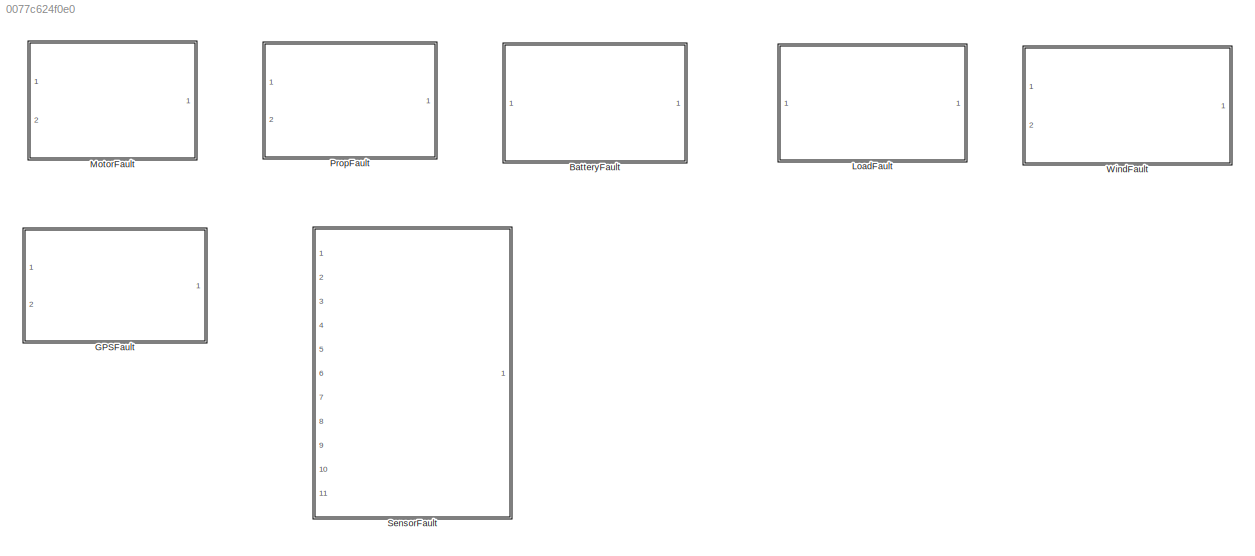
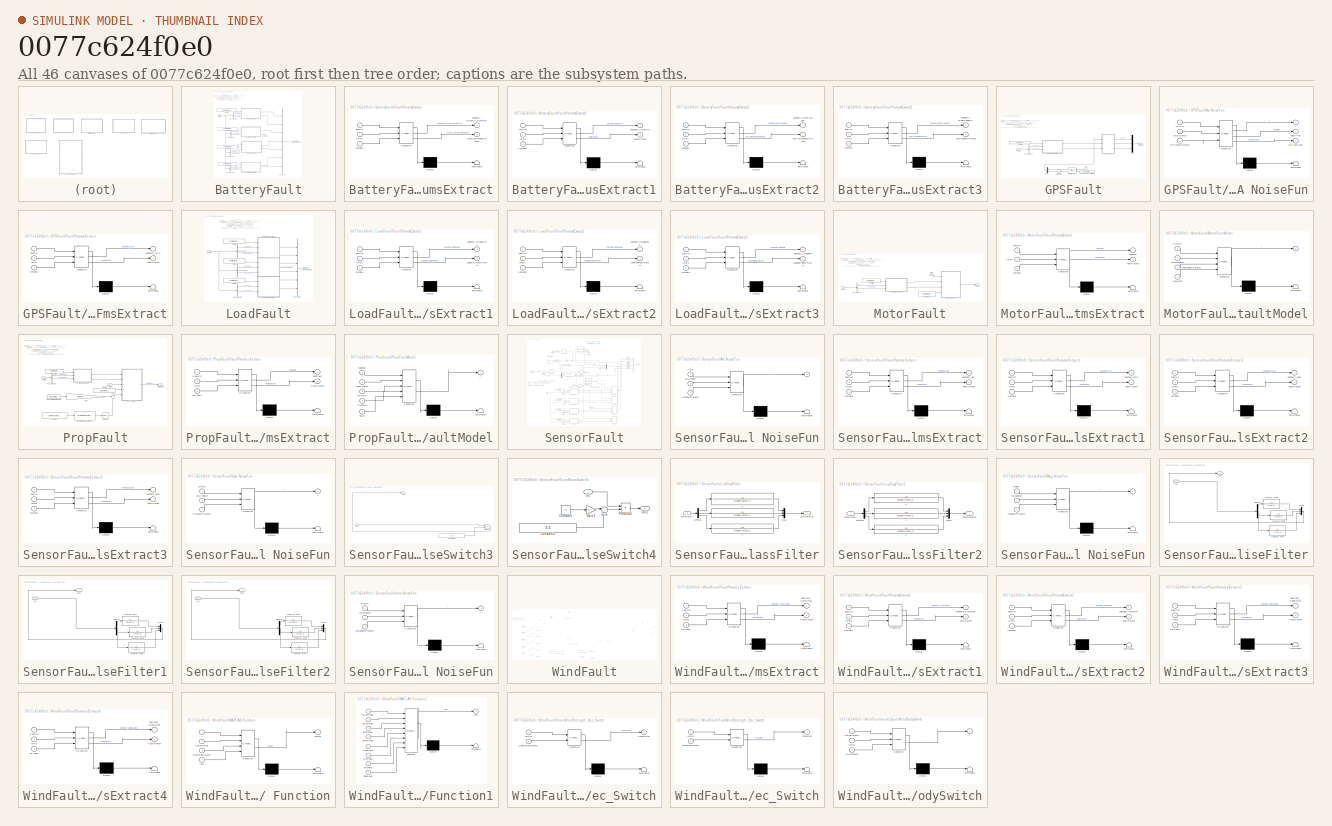
[diagram: thumbnail index - all 46 canvases of the model, root first then tree order]
MODEL slx_0077c624f0e0
KIND library
CONFIG AbsTol = auto
CONFIG EnableMultiTasking = off
CONFIG FixedStep = auto
CONFIG MaxStep = auto
CONFIG MinStep = auto
CONFIG RelTol = 1e-3
CONFIG SampleTimeConstraint = Unconstrained
CONFIG SolverName = VariableStepAuto
CONFIG StartTime = 0.0
CONFIG StopTime = 10.0
BLOCK [SubSystem] BatteryFault
  Ports = [1, 1]
  RequestExecContextInheritance = off
BLOCK [Outport] BatteryFault/BatteryFaultParam
BLOCK [BusCreator] BatteryFault/Bus Creator
  DisplayOption = bar
  InheritFromInputs = on
  Inputs = 7
  Ports = [7, 1]
BLOCK [BusSelector] BatteryFault/Bus Selector
  OutputSignals = inSILInts,inSILFloats
  Ports = [1, 2]
BLOCK [BusSelector] BatteryFault/Bus Selector1
  OutputSignals = inSILInts,inSILFloats
  Ports = [1, 2]
BLOCK [BusSelector] BatteryFault/Bus Selector2
  OutputSignals = inSILInts,inSILFloats
  Ports = [1, 2]
BLOCK [BusSelector] BatteryFault/Bus Selector3
  OutputSignals = inSILInts,inSILFloats
  Ports = [1, 2]
BLOCK [Constant] BatteryFault/FaultID
  OutDataTypeStr = int32
  Value = FaultParamStruct.UseCusTomHoverTimeFaultID
BLOCK [Constant] BatteryFault/FaultID1
  OutDataTypeStr = int32
  Value = FaultParamStruct.PowOffFaultID
BLOCK [Constant] BatteryFault/FaultID2
  OutDataTypeStr = int32
  Value = FaultParamStruct.LowVoltageFaultID
BLOCK [Constant] BatteryFault/FaultID3
  OutDataTypeStr = int32
  Value = FaultParamStruct.LowCapacityFaultID
BLOCK [Inport] BatteryFault/FaultIn
BLOCK [SubSystem] BatteryFault/FaultParamsExtract
  ErrorFcn = Stateflow.Translate.translate
  PermitHierarchicalResolution = ExplicitOnly
  Ports = [3, 2]
  RequestExecContextInheritance = off
  SFBlockType = MATLAB Function
  TreatAsAtomicUnit = on
BLOCK [Demux] BatteryFault/FaultParamsExtract/ Demux 
  Outputs = 1
  Ports = [1, 1]
BLOCK [S-Function] BatteryFault/FaultParamsExtract/ SFunction 
  EnableBusSupport = off
  FunctionName = sf_sfun
  PortCounts = [3 3]
  Ports = [3, 3]
  SFcnIsStateOwnerBlock = off
  SFunctionDeploymentMode = off
  Tag = Stateflow S-Function 4
BLOCK [Terminator] BatteryFault/FaultParamsExtract/ Terminator 
BLOCK [Inport] BatteryFault/FaultParamsExtract/FaultID
BLOCK [Outport] BatteryFault/FaultParamsExtract/UserCustomFaultParam
  Port = 2
  VectorParamsAs1DForOutWhenUnconnected = off
BLOCK [Outport] BatteryFault/FaultParamsExtract/hasFault_isUseCustomHovTime
  VectorParamsAs1DForOutWhenUnconnected = off
BLOCK [Inport] BatteryFault/FaultParamsExtract/inFloats
  Port = 3
BLOCK [Inport] BatteryFault/FaultParamsExtract/inInts
  Port = 2
BLOCK [SubSystem] BatteryFault/FaultParamsExtract1
  ErrorFcn = Stateflow.Translate.translate
  PermitHierarchicalResolution = ExplicitOnly
  Ports = [3, 2]
  RequestExecContextInheritance = off
  SFBlockType = MATLAB Function
  TreatAsAtomicUnit = on
BLOCK [Demux] BatteryFault/FaultParamsExtract1/ Demux 
  Outputs = 1
  Ports = [1, 1]
BLOCK [S-Function] BatteryFault/FaultParamsExtract1/ SFunction 
  EnableBusSupport = off
  FunctionName = sf_sfun
  PortCounts = [3 3]
  Ports = [3, 3]
  SFcnIsStateOwnerBlock = off
  SFunctionDeploymentMode = off
  Tag = Stateflow S-Function 35
BLOCK [Terminator] BatteryFault/FaultParamsExtract1/ Terminator 
BLOCK [Inport] BatteryFault/FaultParamsExtract1/FaultID
BLOCK [Outport] BatteryFault/FaultParamsExtract1/FaultParam
  Port = 2
  VectorParamsAs1DForOutWhenUnconnected = off
BLOCK [Outport] BatteryFault/FaultParamsExtract1/hasFault_isPowOff
  VectorParamsAs1DForOutWhenUnconnected = off
BLOCK [Inport] BatteryFault/FaultParamsExtract1/inFloats
  Port = 3
BLOCK [Inport] BatteryFault/FaultParamsExtract1/inInts
  Port = 2
BLOCK [SubSystem] BatteryFault/FaultParamsExtract2
  ErrorFcn = Stateflow.Translate.translate
  PermitHierarchicalResolution = ExplicitOnly
  Ports = [3, 2]
  RequestExecContextInheritance = off
  SFBlockType = MATLAB Function
  TreatAsAtomicUnit = on
BLOCK [Demux] BatteryFault/FaultParamsExtract2/ Demux 
  Outputs = 1
  Ports = [1, 1]
BLOCK [S-Function] BatteryFault/FaultParamsExtract2/ SFunction 
  EnableBusSupport = off
  FunctionName = sf_sfun
  PortCounts = [3 3]
  Ports = [3, 3]
  SFcnIsStateOwnerBlock = off
  SFunctionDeploymentMode = off
  Tag = Stateflow S-Function 54
BLOCK [Terminator] BatteryFault/FaultParamsExtract2/ Terminator 
BLOCK [Inport] BatteryFault/FaultParamsExtract2/FaultID
BLOCK [Outport] BatteryFault/FaultParamsExtract2/LowVoltageFaultParam
  Port = 2
  VectorParamsAs1DForOutWhenUnconnected = off
BLOCK [Outport] BatteryFault/FaultParamsExtract2/hasFault_isLowVoltage
  VectorParamsAs1DForOutWhenUnconnected = off
BLOCK [Inport] BatteryFault/FaultParamsExtract2/inFloats
  Port = 3
BLOCK [Inport] BatteryFault/FaultParamsExtract2/inInts
  Port = 2
BLOCK [SubSystem] BatteryFault/FaultParamsExtract3
  ErrorFcn = Stateflow.Translate.translate
  PermitHierarchicalResolution = ExplicitOnly
  Ports = [3, 2]
  RequestExecContextInheritance = off
  SFBlockType = MATLAB Function
  TreatAsAtomicUnit = on
BLOCK [Demux] BatteryFault/FaultParamsExtract3/ Demux 
  Outputs = 1
  Ports = [1, 1]
BLOCK [S-Function] BatteryFault/FaultParamsExtract3/ SFunction 
  EnableBusSupport = off
  FunctionName = sf_sfun
  PortCounts = [3 3]
  Ports = [3, 3]
  SFcnIsStateOwnerBlock = off
  SFunctionDeploymentMode = off
  Tag = Stateflow S-Function 55
BLOCK [Terminator] BatteryFault/FaultParamsExtract3/ Terminator 
BLOCK [Inport] BatteryFault/FaultParamsExtract3/FaultID
BLOCK [Outport] BatteryFault/FaultParamsExtract3/LowCapFaultParam
  Port = 2
  VectorParamsAs1DForOutWhenUnconnected = off
BLOCK [Outport] BatteryFault/FaultParamsExtract3/hasFault_islowCapacity
  VectorParamsAs1DForOutWhenUnconnected = off
BLOCK [Inport] BatteryFault/FaultParamsExtract3/inFloats
  Port = 3
BLOCK [Inport] BatteryFault/FaultParamsExtract3/inInts
  Port = 2
BLOCK [Terminator] BatteryFault/Terminator1
BLOCK [SubSystem] GPSFault
  Ports = [2, 1]
  RequestExecContextInheritance = off
BLOCK [SubSystem] GPSFault/Acc NoiseFun
  ErrorFcn = Stateflow.Translate.translate
  PermitHierarchicalResolution = ExplicitOnly
  Ports = [3, 3]
  RequestExecContextInheritance = off
  SFBlockType = MATLAB Function
  TreatAsAtomicUnit = on
BLOCK [Demux] GPSFault/Acc NoiseFun/ Demux 
  Outputs = 1
  Ports = [1, 1]
BLOCK [S-Function] GPSFault/Acc NoiseFun/ SFunction 
  EnableBusSupport = off
  FunctionName = sf_sfun
  PortCounts = [3 4]
  Ports = [3, 4]
  SFcnIsStateOwnerBlock = off
  SFunctionDeploymentMode = off
  Tag = Stateflow S-Function 62
BLOCK [Terminator] GPSFault/Acc NoiseFun/ Terminator 
BLOCK [Outport] GPSFault/Acc NoiseFun/GPS3Dfixed
  Port = 3
BLOCK [Inport] GPSFault/Acc NoiseFun/GPSFaultParams
  Port = 3
BLOCK [Inport] GPSFault/Acc NoiseFun/GPSIn
BLOCK [Inport] GPSFault/Acc NoiseFun/isGPSFault
  Port = 2
BLOCK [Outport] GPSFault/Acc NoiseFun/satellites
  Port = 2
BLOCK [Outport] GPSFault/Acc NoiseFun/y
BLOCK [BusSelector] GPSFault/Bus Selector
  OutputSignals = inSILInts,inSILFloats
  Ports = [1, 2]
BLOCK [Constant] GPSFault/FaultID
  OutDataTypeStr = int32
  Value = FaultParamStruct.GPSFaultID
BLOCK [Inport] GPSFault/FaultIn
  Port = 2
BLOCK [SubSystem] GPSFault/FaultParamsExtract
  ErrorFcn = Stateflow.Translate.translate
  PermitHierarchicalResolution = ExplicitOnly
  Ports = [3, 2]
  RequestExecContextInheritance = off
  SFBlockType = MATLAB Function
  TreatAsAtomicUnit = on
BLOCK [Demux] GPSFault/FaultParamsExtract/ Demux 
  Outputs = 1
  Ports = [1, 1]
BLOCK [S-Function] GPSFault/FaultParamsExtract/ SFunction 
  EnableBusSupport = off
  FunctionName = sf_sfun
  PortCounts = [3 3]
  Ports = [3, 3]
  SFcnIsStateOwnerBlock = off
  SFunctionDeploymentMode = off
  Tag = Stateflow S-Function 46
BLOCK [Terminator] GPSFault/FaultParamsExtract/ Terminator 
BLOCK [Inport] GPSFault/FaultParamsExtract/FaultID
BLOCK [Outport] GPSFault/FaultParamsExtract/FaultParam
  Port = 2
  VectorParamsAs1DForOutWhenUnconnected = off
BLOCK [Outport] GPSFault/FaultParamsExtract/hasFault_GPS
  VectorParamsAs1DForOutWhenUnconnected = off
BLOCK [Inport] GPSFault/FaultParamsExtract/inFloats
  Port = 3
BLOCK [Inport] GPSFault/FaultParamsExtract/inInts
  Port = 2
BLOCK [Reference] GPSFault/Flat Earth to LLA  REF=aerolibtransform2/Flat Earth to LLA
  Ports = [2, 2]
  SourceBlock = aerolibtransform2/Flat Earth to LLA
  SourceProductBaseCode = AE
  SourceType = Flat Earth to LLA
BLOCK [Outport] GPSFault/GPSOut
BLOCK [Constant] GPSFault/ModelParam.envAltitude
  Value = ModelParam_envAltitude
BLOCK [Mux] GPSFault/Mux
  DisplayOption = bar
  Inputs = 2
  Ports = [2, 1]
BLOCK [Mux] GPSFault/Mux1
  DisplayOption = bar
  Inputs = 3
  Ports = [3, 1]
BLOCK [Saturate] GPSFault/Saturation
  LowerLimit = 0
  UpperLimit = 100000
BLOCK [Inport] GPSFault/Xe
  NameLocation = top
BLOCK [SubSystem] LoadFault
  Ports = [1, 1]
  RequestExecContextInheritance = off
BLOCK [BusCreator] LoadFault/Bus Creator
  DisplayOption = bar
  InheritFromInputs = on
  Inputs = 6
  Ports = [6, 1]
BLOCK [BusSelector] LoadFault/Bus Selector
  OutputSignals = inSILInts,inSILFloats
  Ports = [1, 2]
BLOCK [BusSelector] LoadFault/Bus Selector2
  OutputSignals = inSILInts,inSILFloats
  Ports = [1, 2]
BLOCK [BusSelector] LoadFault/Bus Selector3
  OutputSignals = inSILInts,inSILFloats
  Ports = [1, 2]
BLOCK [Constant] LoadFault/FaultID
  OutDataTypeStr = int32
  Value = FaultParamStruct.LoadFallFaultID
BLOCK [Constant] LoadFault/FaultID1
  OutDataTypeStr = int32
  Value = FaultParamStruct.LoadShiftFaultID
BLOCK [Constant] LoadFault/FaultID2
  OutDataTypeStr = int32
  Value = FaultParamStruct.LoadLeakFaultID
BLOCK [Inport] LoadFault/FaultIn
BLOCK [SubSystem] LoadFault/FaultParamsExtract1
  ErrorFcn = Stateflow.Translate.translate
  PermitHierarchicalResolution = ExplicitOnly
  Ports = [3, 2]
  RequestExecContextInheritance = off
  SFBlockType = MATLAB Function
  TreatAsAtomicUnit = on
BLOCK [Demux] LoadFault/FaultParamsExtract1/ Demux 
  Outputs = 1
  Ports = [1, 1]
BLOCK [S-Function] LoadFault/FaultParamsExtract1/ SFunction 
  EnableBusSupport = off
  FunctionName = sf_sfun
  PortCounts = [3 3]
  Ports = [3, 3]
  SFcnIsStateOwnerBlock = off
  SFunctionDeploymentMode = off
  Tag = Stateflow S-Function 45
BLOCK [Terminator] LoadFault/FaultParamsExtract1/ Terminator 
BLOCK [Inport] LoadFault/FaultParamsExtract1/FaultID
BLOCK [Outport] LoadFault/FaultParamsExtract1/LoadShiftFaultParam
  Port = 2
  VectorParamsAs1DForOutWhenUnconnected = off
BLOCK [Outport] LoadFault/FaultParamsExtract1/hasFault_isloadShift
  VectorParamsAs1DForOutWhenUnconnected = off
BLOCK [Inport] LoadFault/FaultParamsExtract1/inFloats
  Port = 3
BLOCK [Inport] LoadFault/FaultParamsExtract1/inInts
  Port = 2
BLOCK [SubSystem] LoadFault/FaultParamsExtract2
  ErrorFcn = Stateflow.Translate.translate
  PermitHierarchicalResolution = ExplicitOnly
  Ports = [3, 2]
  RequestExecContextInheritance = off
  SFBlockType = MATLAB Function
  TreatAsAtomicUnit = on
BLOCK [Demux] LoadFault/FaultParamsExtract2/ Demux 
  Outputs = 1
  Ports = [1, 1]
BLOCK [S-Function] LoadFault/FaultParamsExtract2/ SFunction 
  EnableBusSupport = off
  FunctionName = sf_sfun
  PortCounts = [3 3]
  Ports = [3, 3]
  SFcnIsStateOwnerBlock = off
  SFunctionDeploymentMode = off
  Tag = Stateflow S-Function 57
BLOCK [Terminator] LoadFault/FaultParamsExtract2/ Terminator 
BLOCK [Inport] LoadFault/FaultParamsExtract2/FaultID
BLOCK [Outport] LoadFault/FaultParamsExtract2/LoadleakFaultParam
  Port = 2
  VectorParamsAs1DForOutWhenUnconnected = off
BLOCK [Outport] LoadFault/FaultParamsExtract2/hasFault_isloadLeak
  VectorParamsAs1DForOutWhenUnconnected = off
BLOCK [Inport] LoadFault/FaultParamsExtract2/inFloats
  Port = 3
BLOCK [Inport] LoadFault/FaultParamsExtract2/inInts
  Port = 2
BLOCK [SubSystem] LoadFault/FaultParamsExtract3
  ErrorFcn = Stateflow.Translate.translate
  PermitHierarchicalResolution = ExplicitOnly
  Ports = [3, 2]
  RequestExecContextInheritance = off
  SFBlockType = MATLAB Function
  TreatAsAtomicUnit = on
BLOCK [Demux] LoadFault/FaultParamsExtract3/ Demux 
  Outputs = 1
  Ports = [1, 1]
BLOCK [S-Function] LoadFault/FaultParamsExtract3/ SFunction 
  EnableBusSupport = off
  FunctionName = sf_sfun
  PortCounts = [3 3]
  Ports = [3, 3]
  SFcnIsStateOwnerBlock = off
  SFunctionDeploymentMode = off
  Tag = Stateflow S-Function 56
BLOCK [Terminator] LoadFault/FaultParamsExtract3/ Terminator 
BLOCK [Inport] LoadFault/FaultParamsExtract3/FaultID
BLOCK [Outport] LoadFault/FaultParamsExtract3/LoadFallFaultParam
  Port = 2
  VectorParamsAs1DForOutWhenUnconnected = off
BLOCK [Outport] LoadFault/FaultParamsExtract3/hasFault_isloadFall
  VectorParamsAs1DForOutWhenUnconnected = off
BLOCK [Inport] LoadFault/FaultParamsExtract3/inFloats
  Port = 3
BLOCK [Inport] LoadFault/FaultParamsExtract3/inInts
  Port = 2
BLOCK [Outport] LoadFault/LoadFaultParam
BLOCK [SubSystem] MotorFault
  Ports = [2, 1]
  RequestExecContextInheritance = off
BLOCK [BusSelector] MotorFault/Bus Selector
  OutputSignals = inSILInts,inSILFloats
  Ports = [1, 2]
BLOCK [Constant] MotorFault/FaultID
  OutDataTypeStr = int32
  Value = FaultParamStruct.FaultID
BLOCK [Inport] MotorFault/FaultIn
BLOCK [SubSystem] MotorFault/FaultParamsExtract
  ErrorFcn = Stateflow.Translate.translate
  PermitHierarchicalResolution = ExplicitOnly
  Ports = [3, 2]
  RequestExecContextInheritance = off
  SFBlockType = MATLAB Function
  TreatAsAtomicUnit = on
BLOCK [Demux] MotorFault/FaultParamsExtract/ Demux 
  Outputs = 1
  Ports = [1, 1]
BLOCK [S-Function] MotorFault/FaultParamsExtract/ SFunction 
  EnableBusSupport = off
  FunctionName = sf_sfun
  PortCounts = [3 3]
  Ports = [3, 3]
  SFcnIsStateOwnerBlock = off
  SFunctionDeploymentMode = off
  Tag = Stateflow S-Function 34
BLOCK [Terminator] MotorFault/FaultParamsExtract/ Terminator 
BLOCK [Inport] MotorFault/FaultParamsExtract/FaultID
BLOCK [Outport] MotorFault/FaultParamsExtract/FaultParam
  Port = 2
  VectorParamsAs1DForOutWhenUnconnected = off
BLOCK [Outport] MotorFault/FaultParamsExtract/hasFault
  VectorParamsAs1DForOutWhenUnconnected = off
BLOCK [Inport] MotorFault/FaultParamsExtract/inFloats
  Port = 3
BLOCK [Inport] MotorFault/FaultParamsExtract/inInts
  Port = 2
BLOCK [SubSystem] MotorFault/MotorFaultModel
  ErrorFcn = Stateflow.Translate.translate
  PermitHierarchicalResolution = ExplicitOnly
  Ports = [4, 1]
  RequestExecContextInheritance = off
  SFBlockType = MATLAB Function
  TreatAsAtomicUnit = on
BLOCK [Demux] MotorFault/MotorFaultModel/ Demux 
  Outputs = 1
  Ports = [1, 1]
BLOCK [S-Function] MotorFault/MotorFaultModel/ SFunction 
  EnableBusSupport = off
  FunctionName = sf_sfun
  PortCounts = [4 2]
  Ports = [4, 2]
  SFcnIsStateOwnerBlock = off
  SFunctionDeploymentMode = off
  Tag = Stateflow S-Function 51
BLOCK [Terminator] MotorFault/MotorFaultModel/ Terminator 
BLOCK [Inport] MotorFault/MotorFaultModel/MotorFaultParams
  Port = 3
BLOCK [Inport] MotorFault/MotorFaultModel/PWMIn
BLOCK [Inport] MotorFault/MotorFaultModel/isMotorFault
  Port = 2
BLOCK [Inport] MotorFault/MotorFaultModel/motNum
  Port = 4
BLOCK [Outport] MotorFault/MotorFaultModel/y
  VectorParamsAs1DForOutWhenUnconnected = off
BLOCK [Constant] MotorFault/MotorNum
  OutDataTypeStr = int32
  Value = FaultParamStruct.MotorNum
BLOCK [Inport] MotorFault/PWMIn
  Port = 2
BLOCK [Outport] MotorFault/PWMOut
BLOCK [SubSystem] PropFault
  Ports = [2, 1]
  RequestExecContextInheritance = off
BLOCK [Reference] PropFault/Band-Limited White Noise  REF=simulink/Sources/Band-Limited
White Noise
  Ports = [0, 1]
  SourceBlock = simulink/Sources/Band-Limited\nWhite Noise
  SourceProductBaseCode = SL
  SourceType = Band-Limited White Noise.
BLOCK [BusSelector] PropFault/Bus Selector
  OutputSignals = inSILInts,inSILFloats
  Ports = [1, 2]
BLOCK [Constant] PropFault/Constant
  Value = ComParamVect.FaultInParams(2)
BLOCK [Reference] PropFault/Discrete Wind Gust Model  REF=aerolibwind2/Discrete Wind Gust Model
  Ports = [1, 1]
  SourceBlock = aerolibwind2/Discrete Wind Gust Model
  SourceProductBaseCode = AE
  SourceType = Discrete Wind Gust Model
BLOCK [Constant] PropFault/FaultID
  OutDataTypeStr = int32
  Value = FaultParamStruct.FaultID
BLOCK [Constant] PropFault/FaultID1
  OutDataTypeStr = int32
  Value = FaultParamStruct.PropNum
BLOCK [Inport] PropFault/FaultIn
BLOCK [SubSystem] PropFault/FaultParamsExtract
  ErrorFcn = Stateflow.Translate.translate
  PermitHierarchicalResolution = ExplicitOnly
  Ports = [3, 2]
  RequestExecContextInheritance = off
  SFBlockType = MATLAB Function
  TreatAsAtomicUnit = on
BLOCK [Demux] PropFault/FaultParamsExtract/ Demux 
  Outputs = 1
  Ports = [1, 1]
BLOCK [S-Function] PropFault/FaultParamsExtract/ SFunction 
  EnableBusSupport = off
  FunctionName = sf_sfun
  PortCounts = [3 3]
  Ports = [3, 3]
  SFcnIsStateOwnerBlock = off
  SFunctionDeploymentMode = off
  Tag = Stateflow S-Function 52
BLOCK [Terminator] PropFault/FaultParamsExtract/ Terminator 
BLOCK [Inport] PropFault/FaultParamsExtract/FaultID
BLOCK [Outport] PropFault/FaultParamsExtract/FaultParam
  Port = 2
  VectorParamsAs1DForOutWhenUnconnected = off
BLOCK [Outport] PropFault/FaultParamsExtract/hasFault
  VectorParamsAs1DForOutWhenUnconnected = off
BLOCK [Inport] PropFault/FaultParamsExtract/inFloats
  Port = 3
BLOCK [Inport] PropFault/FaultParamsExtract/inInts
  Port = 2
BLOCK [Gain] PropFault/Gain
  Gain = ComParamVect.FaultInParams(1)
BLOCK [Outport] PropFault/MotorRads
  VectorParamsAs1DForOutWhenUnconnected = off
BLOCK [Inport] PropFault/PWMIn
  Port = 2
BLOCK [SubSystem] PropFault/PropFaultModel
  ErrorFcn = Stateflow.Translate.translate
  PermitHierarchicalResolution = ExplicitOnly
  Ports = [5, 1]
  RequestExecContextInheritance = off
  SFBlockType = MATLAB Function
  TreatAsAtomicUnit = on
BLOCK [Demux] PropFault/PropFaultModel/ Demux 
  Outputs = 1
  Ports = [1, 1]
BLOCK [S-Function] PropFault/PropFaultModel/ SFunction 
  EnableBusSupport = off
  FunctionName = sf_sfun
  PortCounts = [5 2]
  Ports = [5, 2]
  SFcnIsStateOwnerBlock = off
  SFunctionDeploymentMode = off
  Tag = Stateflow S-Function 53
BLOCK [Terminator] PropFault/PropFaultModel/ Terminator 
BLOCK [Inport] PropFault/PropFaultModel/FaultParam
  Port = 2
BLOCK [Inport] PropFault/PropFaultModel/PropNum
  Port = 4
BLOCK [Inport] PropFault/PropFaultModel/hasFault
BLOCK [Inport] PropFault/PropFaultModel/inPWMs
  Port = 3
BLOCK [Inport] PropFault/PropFaultModel/noise
  Port = 5
BLOCK [Outport] PropFault/PropFaultModel/y
  VectorParamsAs1DForOutWhenUnconnected = off
BLOCK [Selector] PropFault/Selector
  IndexOptions = Index vector (dialog)
  Indices = [1]
  InputPortWidth = 3
  OutputSizes = 1
  Ports = [1, 1]
BLOCK [Sum] PropFault/Sum
  Inputs = |++
  Ports = [2, 1]
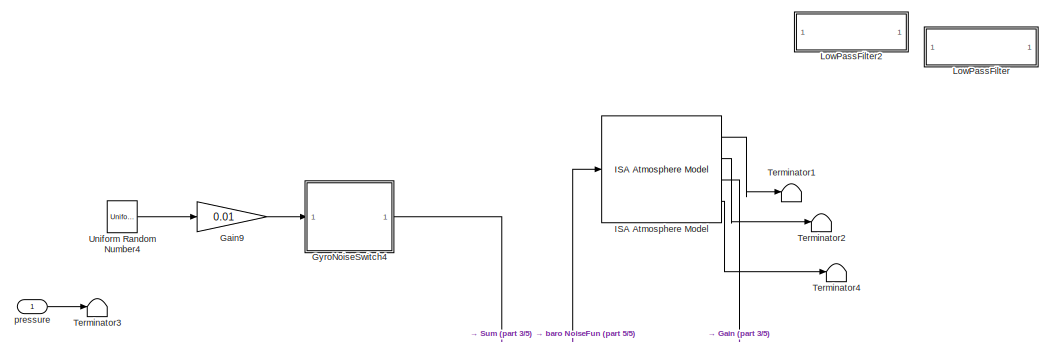
[diagram: SensorFault - part 1/5, top center region]
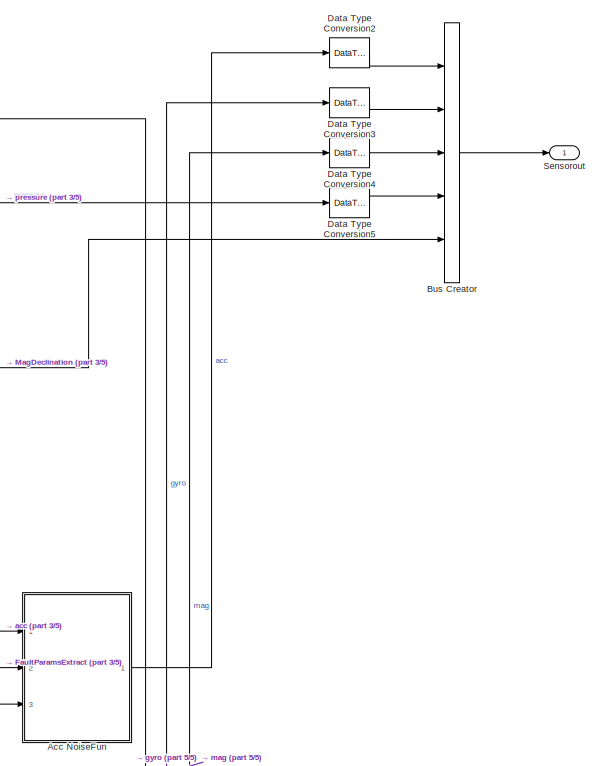
[diagram: SensorFault - part 2/5, middle right region]
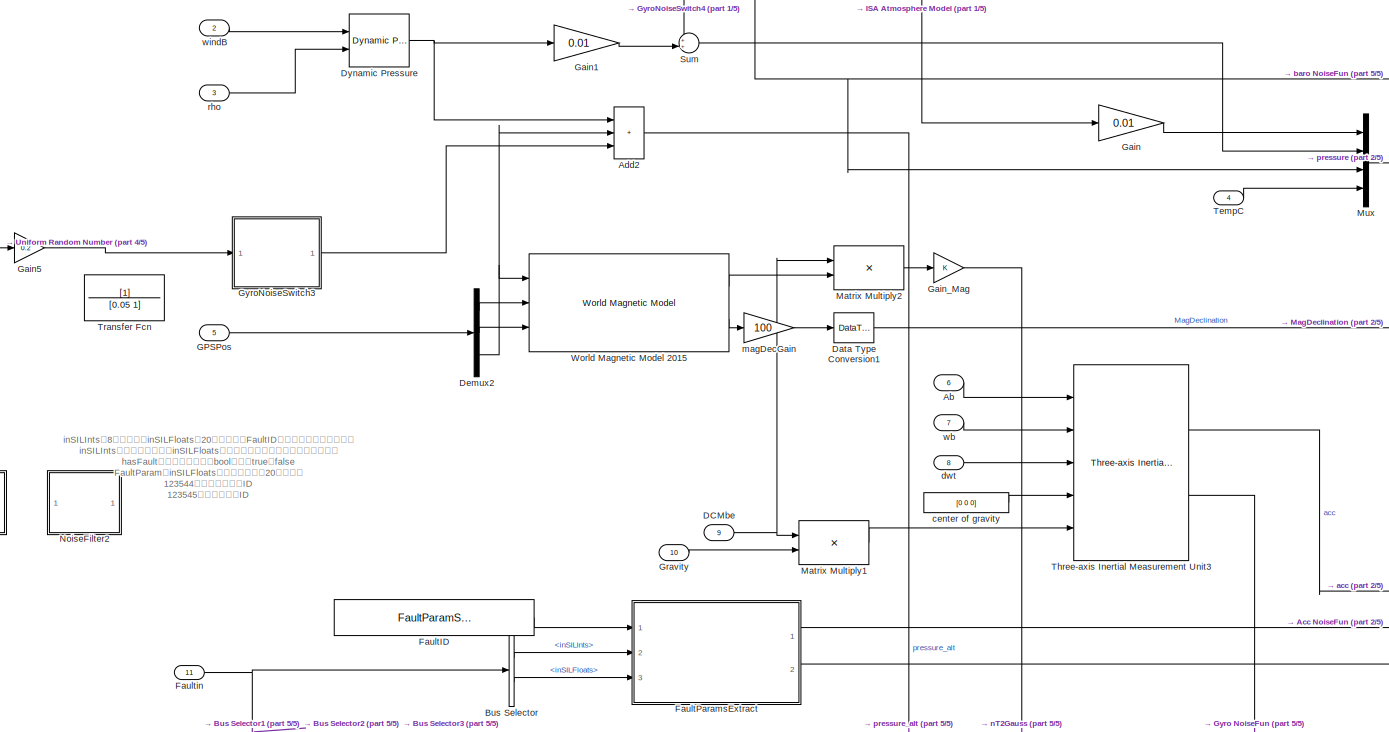
[diagram: SensorFault - part 3/5, central region]
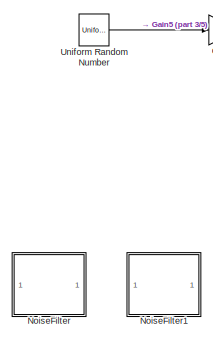
[diagram: SensorFault - part 4/5, middle left region]
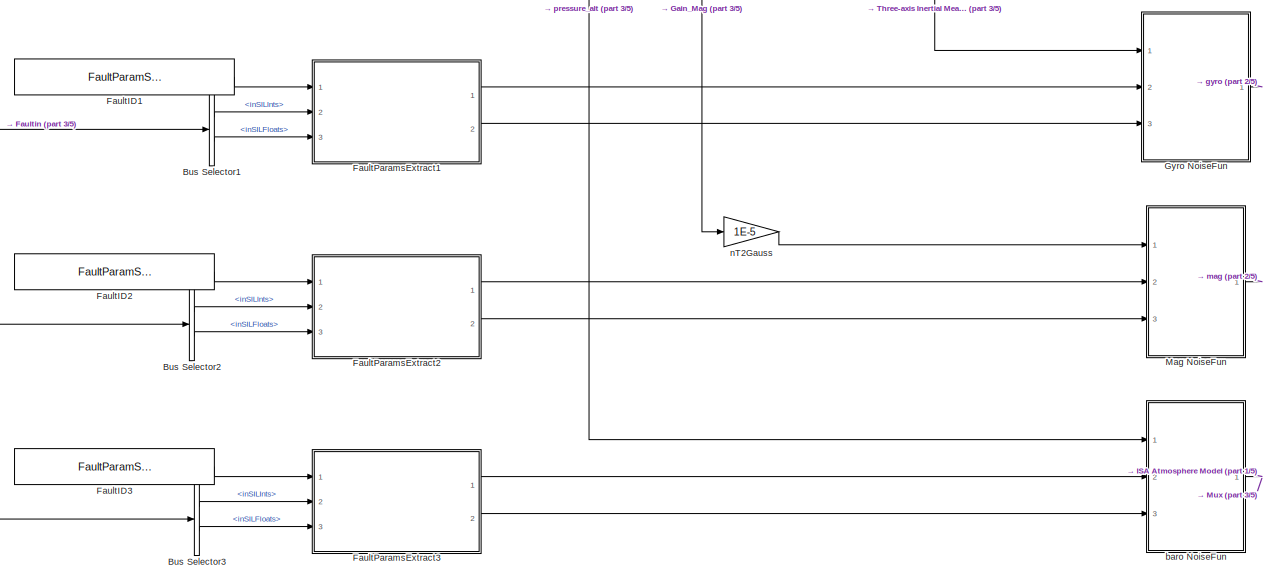
[diagram: SensorFault - part 5/5, bottom center region]
BLOCK [SubSystem] SensorFault
  Ports = [11, 1]
  RequestExecContextInheritance = off
BLOCK [Inport] SensorFault/Ab
  NameLocation = top
  Port = 6
BLOCK [SubSystem] SensorFault/Acc NoiseFun
  ErrorFcn = Stateflow.Translate.translate
  PermitHierarchicalResolution = ExplicitOnly
  Ports = [3, 1]
  RequestExecContextInheritance = off
  SFBlockType = MATLAB Function
  TreatAsAtomicUnit = on
BLOCK [Demux] SensorFault/Acc NoiseFun/ Demux 
  Outputs = 1
  Ports = [1, 1]
BLOCK [S-Function] SensorFault/Acc NoiseFun/ SFunction 
  EnableBusSupport = off
  FunctionName = sf_sfun
  PortCounts = [3 2]
  Ports = [3, 2]
  SFcnIsStateOwnerBlock = off
  SFunctionDeploymentMode = off
  Tag = Stateflow S-Function 41
BLOCK [Terminator] SensorFault/Acc NoiseFun/ Terminator 
BLOCK [Inport] SensorFault/Acc NoiseFun/AccFaultParams
  Port = 3
BLOCK [Inport] SensorFault/Acc NoiseFun/AccIn
BLOCK [Inport] SensorFault/Acc NoiseFun/isAccFault
  Port = 2
BLOCK [Outport] SensorFault/Acc NoiseFun/y
BLOCK [Sum] SensorFault/Add2
  IconShape = rectangular
  Inputs = +++
  Ports = [3, 1]
BLOCK [BusCreator] SensorFault/Bus Creator
  DisplayOption = bar
  InheritFromInputs = on
  Inputs = 5
  Ports = [5, 1]
BLOCK [BusSelector] SensorFault/Bus Selector
  OutputSignals = inSILInts,inSILFloats
  Ports = [1, 2]
BLOCK [BusSelector] SensorFault/Bus Selector1
  OutputSignals = inSILInts,inSILFloats
  Ports = [1, 2]
BLOCK [BusSelector] SensorFault/Bus Selector2
  OutputSignals = inSILInts,inSILFloats
  Ports = [1, 2]
BLOCK [BusSelector] SensorFault/Bus Selector3
  OutputSignals = inSILInts,inSILFloats
  Ports = [1, 2]
BLOCK [Inport] SensorFault/DCMbe
  NameLocation = top
  Port = 9
BLOCK [DataTypeConversion] SensorFault/Data Type Conversion1
  OutDataTypeStr = int16
  RndMeth = Floor
  SaturateOnIntegerOverflow = off
BLOCK [DataTypeConversion] SensorFault/Data Type Conversion2
  OutDataTypeStr = single
  RndMeth = Floor
  SaturateOnIntegerOverflow = off
BLOCK [DataTypeConversion] SensorFault/Data Type Conversion3
  OutDataTypeStr = single
  RndMeth = Floor
  SaturateOnIntegerOverflow = off
BLOCK [DataTypeConversion] SensorFault/Data Type Conversion4
  OutDataTypeStr = single
  RndMeth = Floor
  SaturateOnIntegerOverflow = off
BLOCK [DataTypeConversion] SensorFault/Data Type Conversion5
  OutDataTypeStr = single
  RndMeth = Floor
  SaturateOnIntegerOverflow = off
BLOCK [Demux] SensorFault/Demux2
  Outputs = 3
  Ports = [1, 3]
BLOCK [Reference] SensorFault/Dynamic Pressure  REF=aerolibasang/Dynamic Pressure
  Ports = [2, 1]
  SourceBlock = aerolibasang/Dynamic Pressure
  SourceProductBaseCode = AE
  SourceType = Dynamic Pressure
BLOCK [Constant] SensorFault/FaultID
  OutDataTypeStr = int32
  Value = FaultParamStruct.AccFaultID
BLOCK [Constant] SensorFault/FaultID1
  OutDataTypeStr = int32
  Value = FaultParamStruct.GyroFaultID
BLOCK [Constant] SensorFault/FaultID2
  OutDataTypeStr = int32
  Value = FaultParamStruct.MagFaultID
BLOCK [Constant] SensorFault/FaultID3
  OutDataTypeStr = int32
  Value = FaultParamStruct.BaroFaultID
BLOCK [SubSystem] SensorFault/FaultParamsExtract
  ErrorFcn = Stateflow.Translate.translate
  PermitHierarchicalResolution = ExplicitOnly
  Ports = [3, 2]
  RequestExecContextInheritance = off
  SFBlockType = MATLAB Function
  TreatAsAtomicUnit = on
BLOCK [Demux] SensorFault/FaultParamsExtract/ Demux 
  Outputs = 1
  Ports = [1, 1]
BLOCK [S-Function] SensorFault/FaultParamsExtract/ SFunction 
  EnableBusSupport = off
  FunctionName = sf_sfun
  PortCounts = [3 3]
  Ports = [3, 3]
  SFcnIsStateOwnerBlock = off
  SFunctionDeploymentMode = off
  Tag = Stateflow S-Function 8
BLOCK [Terminator] SensorFault/FaultParamsExtract/ Terminator 
BLOCK [Inport] SensorFault/FaultParamsExtract/FaultID
BLOCK [Outport] SensorFault/FaultParamsExtract/FaultParam
  Port = 2
  VectorParamsAs1DForOutWhenUnconnected = off
BLOCK [Outport] SensorFault/FaultParamsExtract/hasFault_acc
  VectorParamsAs1DForOutWhenUnconnected = off
BLOCK [Inport] SensorFault/FaultParamsExtract/inFloats
  Port = 3
BLOCK [Inport] SensorFault/FaultParamsExtract/inInts
  Port = 2
BLOCK [SubSystem] SensorFault/FaultParamsExtract1
  ErrorFcn = Stateflow.Translate.translate
  PermitHierarchicalResolution = ExplicitOnly
  Ports = [3, 2]
  RequestExecContextInheritance = off
  SFBlockType = MATLAB Function
  TreatAsAtomicUnit = on
BLOCK [Demux] SensorFault/FaultParamsExtract1/ Demux 
  Outputs = 1
  Ports = [1, 1]
BLOCK [S-Function] SensorFault/FaultParamsExtract1/ SFunction 
  EnableBusSupport = off
  FunctionName = sf_sfun
  PortCounts = [3 3]
  Ports = [3, 3]
  SFcnIsStateOwnerBlock = off
  SFunctionDeploymentMode = off
  Tag = Stateflow S-Function 11
BLOCK [Terminator] SensorFault/FaultParamsExtract1/ Terminator 
BLOCK [Inport] SensorFault/FaultParamsExtract1/FaultID
BLOCK [Outport] SensorFault/FaultParamsExtract1/FaultParam
  Port = 2
  VectorParamsAs1DForOutWhenUnconnected = off
BLOCK [Outport] SensorFault/FaultParamsExtract1/hasFault_gyro
  VectorParamsAs1DForOutWhenUnconnected = off
BLOCK [Inport] SensorFault/FaultParamsExtract1/inFloats
  Port = 3
BLOCK [Inport] SensorFault/FaultParamsExtract1/inInts
  Port = 2
BLOCK [SubSystem] SensorFault/FaultParamsExtract2
  ErrorFcn = Stateflow.Translate.translate
  PermitHierarchicalResolution = ExplicitOnly
  Ports = [3, 2]
  RequestExecContextInheritance = off
  SFBlockType = MATLAB Function
  TreatAsAtomicUnit = on
BLOCK [Demux] SensorFault/FaultParamsExtract2/ Demux 
  Outputs = 1
  Ports = [1, 1]
BLOCK [S-Function] SensorFault/FaultParamsExtract2/ SFunction 
  EnableBusSupport = off
  FunctionName = sf_sfun
  PortCounts = [3 3]
  Ports = [3, 3]
  SFcnIsStateOwnerBlock = off
  SFunctionDeploymentMode = off
  Tag = Stateflow S-Function 38
BLOCK [Terminator] SensorFault/FaultParamsExtract2/ Terminator 
BLOCK [Inport] SensorFault/FaultParamsExtract2/FaultID
BLOCK [Outport] SensorFault/FaultParamsExtract2/FaultParam
  Port = 2
  VectorParamsAs1DForOutWhenUnconnected = off
BLOCK [Outport] SensorFault/FaultParamsExtract2/hasFault_mag
  VectorParamsAs1DForOutWhenUnconnected = off
BLOCK [Inport] SensorFault/FaultParamsExtract2/inFloats
  Port = 3
BLOCK [Inport] SensorFault/FaultParamsExtract2/inInts
  Port = 2
BLOCK [SubSystem] SensorFault/FaultParamsExtract3
  ErrorFcn = Stateflow.Translate.translate
  PermitHierarchicalResolution = ExplicitOnly
  Ports = [3, 2]
  RequestExecContextInheritance = off
  SFBlockType = MATLAB Function
  TreatAsAtomicUnit = on
BLOCK [Demux] SensorFault/FaultParamsExtract3/ Demux 
  Outputs = 1
  Ports = [1, 1]
BLOCK [S-Function] SensorFault/FaultParamsExtract3/ SFunction 
  EnableBusSupport = off
  FunctionName = sf_sfun
  PortCounts = [3 3]
  Ports = [3, 3]
  SFcnIsStateOwnerBlock = off
  SFunctionDeploymentMode = off
  Tag = Stateflow S-Function 39
BLOCK [Terminator] SensorFault/FaultParamsExtract3/ Terminator 
BLOCK [Inport] SensorFault/FaultParamsExtract3/FaultID
BLOCK [Outport] SensorFault/FaultParamsExtract3/FaultParam
  Port = 2
  VectorParamsAs1DForOutWhenUnconnected = off
BLOCK [Outport] SensorFault/FaultParamsExtract3/hasFault_baro
  VectorParamsAs1DForOutWhenUnconnected = off
BLOCK [Inport] SensorFault/FaultParamsExtract3/inFloats
  Port = 3
BLOCK [Inport] SensorFault/FaultParamsExtract3/inInts
  Port = 2
BLOCK [Inport] SensorFault/Faultin
  Port = 11
BLOCK [Inport] SensorFault/GPSPos
  Port = 5
BLOCK [Gain] SensorFault/Gain
  Gain = 0.01
BLOCK [Gain] SensorFault/Gain1
  Gain = 0.01
BLOCK [Gain] SensorFault/Gain5
  Gain = 0.2
BLOCK [Gain] SensorFault/Gain9
  Gain = 0.01
BLOCK [Gain] SensorFault/Gain_Mag
BLOCK [Inport] SensorFault/Gravity
  NameLocation = top
  Port = 10
BLOCK [SubSystem] SensorFault/Gyro NoiseFun
  ErrorFcn = Stateflow.Translate.translate
  PermitHierarchicalResolution = ExplicitOnly
  Ports = [3, 1]
  RequestExecContextInheritance = off
  SFBlockType = MATLAB Function
  TreatAsAtomicUnit = on
BLOCK [Demux] SensorFault/Gyro NoiseFun/ Demux 
  Outputs = 1
  Ports = [1, 1]
BLOCK [S-Function] SensorFault/Gyro NoiseFun/ SFunction 
  EnableBusSupport = off
  FunctionName = sf_sfun
  PortCounts = [3 2]
  Ports = [3, 2]
  SFcnIsStateOwnerBlock = off
  SFunctionDeploymentMode = off
  Tag = Stateflow S-Function 43
BLOCK [Terminator] SensorFault/Gyro NoiseFun/ Terminator 
BLOCK [Inport] SensorFault/Gyro NoiseFun/GyroFaultParams
  Port = 3
BLOCK [Inport] SensorFault/Gyro NoiseFun/GyroIn
BLOCK [Inport] SensorFault/Gyro NoiseFun/isGyroFault
  Port = 2
BLOCK [Outport] SensorFault/Gyro NoiseFun/y
BLOCK [SubSystem] SensorFault/GyroNoiseSwitch3
  Ports = [1, 1]
  RequestExecContextInheritance = off
BLOCK [Constant] SensorFault/GyroNoiseSwitch3/Constant2
  Value = 0.3
BLOCK [Inport] SensorFault/GyroNoiseSwitch3/In1
BLOCK [Outport] SensorFault/GyroNoiseSwitch3/Out1
  VectorParamsAs1DForOutWhenUnconnected = off
BLOCK [Product] SensorFault/GyroNoiseSwitch3/Product4
  Ports = [2, 1]
BLOCK [SubSystem] SensorFault/GyroNoiseSwitch4
  Ports = [1, 1]
  RequestExecContextInheritance = off
BLOCK [Constant] SensorFault/GyroNoiseSwitch4/Constant
  Value = 0.5
BLOCK [Constant] SensorFault/GyroNoiseSwitch4/Constant2
  Value = 0.3
BLOCK [Gain] SensorFault/GyroNoiseSwitch4/Gain2
  Gain = 0.7
BLOCK [Inport] SensorFault/GyroNoiseSwitch4/In1
BLOCK [Outport] SensorFault/GyroNoiseSwitch4/Out1
  VectorParamsAs1DForOutWhenUnconnected = off
BLOCK [Product] SensorFault/GyroNoiseSwitch4/Product4
  Ports = [2, 1]
BLOCK [Sum] SensorFault/GyroNoiseSwitch4/Sum
  Inputs = |++
  Ports = [2, 1]
BLOCK [Reference] SensorFault/ISA Atmosphere Model  REF=aerolibatmos2/ISA Atmosphere Model
  Ports = [1, 4]
  SourceBlock = aerolibatmos2/ISA Atmosphere Model
  SourceProductBaseCode = AE
  SourceType = International Standard Atmosphere Model
BLOCK [SubSystem] SensorFault/LowPassFilter
  Commented = on
  Ports = [1, 1]
  RequestExecContextInheritance = off
BLOCK [Demux] SensorFault/LowPassFilter/Demux1
  Outputs = 3
  Ports = [1, 3]
BLOCK [Mux] SensorFault/LowPassFilter/Mux1
  DisplayOption = bar
  Inputs = 3
  Ports = [3, 1]
BLOCK [Inport] SensorFault/LowPassFilter/gyroDataIn
BLOCK [Outport] SensorFault/LowPassFilter/gyroDataOut
  VectorParamsAs1DForOutWhenUnconnected = off
BLOCK [TransferFcn] SensorFault/LowPassFilter/x
  Denominator = [ModelParam_noiseLowPassFilterCoeGyro 1]
BLOCK [TransferFcn] SensorFault/LowPassFilter/y
  Denominator = [ModelParam_noiseLowPassFilterCoeGyro 1]
BLOCK [TransferFcn] SensorFault/LowPassFilter/z
  Denominator = [ModelParam_noiseLowPassFilterCoeGyro 1]
BLOCK [SubSystem] SensorFault/LowPassFilter2
  Commented = on
  Ports = [1, 1]
  RequestExecContextInheritance = off
BLOCK [Demux] SensorFault/LowPassFilter2/Demux1
  Outputs = 3
  Ports = [1, 3]
BLOCK [Mux] SensorFault/LowPassFilter2/Mux1
  DisplayOption = bar
  Inputs = 3
  Ports = [3, 1]
BLOCK [Inport] SensorFault/LowPassFilter2/accelDataIn
BLOCK [Outport] SensorFault/LowPassFilter2/accelDataOut
  VectorParamsAs1DForOutWhenUnconnected = off
BLOCK [TransferFcn] SensorFault/LowPassFilter2/x
  Denominator = [ModelParam_noiseLowPassFilterCoeAccel 1]
BLOCK [TransferFcn] SensorFault/LowPassFilter2/y
  Denominator = [ModelParam_noiseLowPassFilterCoeAccel 1]
BLOCK [TransferFcn] SensorFault/LowPassFilter2/z
  Denominator = [ModelParam_noiseLowPassFilterCoeAccel 1]
BLOCK [SubSystem] SensorFault/Mag NoiseFun
  ErrorFcn = Stateflow.Translate.translate
  PermitHierarchicalResolution = ExplicitOnly
  Ports = [3, 1]
  RequestExecContextInheritance = off
  SFBlockType = MATLAB Function
  TreatAsAtomicUnit = on
BLOCK [Demux] SensorFault/Mag NoiseFun/ Demux 
  Outputs = 1
  Ports = [1, 1]
BLOCK [S-Function] SensorFault/Mag NoiseFun/ SFunction 
  EnableBusSupport = off
  FunctionName = sf_sfun
  PortCounts = [3 2]
  Ports = [3, 2]
  SFcnIsStateOwnerBlock = off
  SFunctionDeploymentMode = off
  Tag = Stateflow S-Function 44
BLOCK [Terminator] SensorFault/Mag NoiseFun/ Terminator 
BLOCK [Inport] SensorFault/Mag NoiseFun/MagFaultParams
  Port = 3
BLOCK [Inport] SensorFault/Mag NoiseFun/MagIn
BLOCK [Inport] SensorFault/Mag NoiseFun/isMagFault
  Port = 2
BLOCK [Outport] SensorFault/Mag NoiseFun/y
BLOCK [Product] SensorFault/Matrix Multiply1
  Multiplication = Matrix(*)
  NameLocation = top
  Ports = [2, 1]
BLOCK [Product] SensorFault/Matrix Multiply2
  Multiplication = Matrix(*)
  NameLocation = top
  Ports = [2, 1]
BLOCK [Mux] SensorFault/Mux
  DisplayOption = bar
  Ports = [4, 1]
BLOCK [SubSystem] SensorFault/NoiseFilter
  Commented = on
  Ports = [1, 1]
  RequestExecContextInheritance = off
BLOCK [Demux] SensorFault/NoiseFilter/Demux
  Outputs = 3
  Ports = [1, 3]
BLOCK [Inport] SensorFault/NoiseFilter/In1
BLOCK [Mux] SensorFault/NoiseFilter/Mux1
  DisplayOption = bar
  Inputs = 3
  Ports = [3, 1]
BLOCK [Outport] SensorFault/NoiseFilter/Out1
  VectorParamsAs1DForOutWhenUnconnected = off
BLOCK [TransferFcn] SensorFault/NoiseFilter/Transfer Fcn4
  Denominator = [0.04 1]
BLOCK [TransferFcn] SensorFault/NoiseFilter/Transfer Fcn5
  Denominator = [0.04 1]
BLOCK [TransferFcn] SensorFault/NoiseFilter/Transfer Fcn6
  Denominator = [0.04 1]
BLOCK [SubSystem] SensorFault/NoiseFilter1
  Commented = on
  Ports = [1, 1]
  RequestExecContextInheritance = off
BLOCK [Demux] SensorFault/NoiseFilter1/Demux
  Outputs = 3
  Ports = [1, 3]
BLOCK [Inport] SensorFault/NoiseFilter1/In1
BLOCK [Mux] SensorFault/NoiseFilter1/Mux1
  DisplayOption = bar
  Inputs = 3
  Ports = [3, 1]
BLOCK [Outport] SensorFault/NoiseFilter1/Out1
  VectorParamsAs1DForOutWhenUnconnected = off
BLOCK [TransferFcn] SensorFault/NoiseFilter1/Transfer Fcn4
  Denominator = [0.04 1]
BLOCK [TransferFcn] SensorFault/NoiseFilter1/Transfer Fcn5
  Denominator = [0.04 1]
BLOCK [TransferFcn] SensorFault/NoiseFilter1/Transfer Fcn6
  Denominator = [0.04 1]
BLOCK [SubSystem] SensorFault/NoiseFilter2
  Commented = on
  Ports = [1, 1]
  RequestExecContextInheritance = off
BLOCK [Demux] SensorFault/NoiseFilter2/Demux
  Outputs = 3
  Ports = [1, 3]
BLOCK [Inport] SensorFault/NoiseFilter2/In1
BLOCK [Mux] SensorFault/NoiseFilter2/Mux1
  DisplayOption = bar
  Inputs = 3
  Ports = [3, 1]
BLOCK [Outport] SensorFault/NoiseFilter2/Out1
  VectorParamsAs1DForOutWhenUnconnected = off
BLOCK [TransferFcn] SensorFault/NoiseFilter2/Transfer Fcn4
  Denominator = [0.05 1]
BLOCK [TransferFcn] SensorFault/NoiseFilter2/Transfer Fcn5
  Denominator = [0.05 1]
BLOCK [TransferFcn] SensorFault/NoiseFilter2/Transfer Fcn6
  Denominator = [0.05 1]
BLOCK [Outport] SensorFault/Sensorout
BLOCK [Sum] SensorFault/Sum
  Inputs = ++|
  Ports = [2, 1]
BLOCK [Inport] SensorFault/TempC
  NameLocation = top
  Port = 4
BLOCK [Terminator] SensorFault/Terminator1
  Commented = on
BLOCK [Terminator] SensorFault/Terminator2
  Commented = on
BLOCK [Terminator] SensorFault/Terminator3
BLOCK [Terminator] SensorFault/Terminator4
  Commented = on
BLOCK [Reference] SensorFault/Three-axis Inertial Measurement Unit3  REF=aerolibnav/Three-axis Inertial
Measurement Unit
  Ports = [5, 2]
  SourceBlock = aerolibnav/Three-axis Inertial\nMeasurement Unit
  SourceProductBaseCode = AE
  SourceType = Three-axis Inertial Measurement Unit
BLOCK [TransferFcn] SensorFault/Transfer Fcn
  Commented = on
  Denominator = [0.05 1]
BLOCK [UniformRandomNumber] SensorFault/Uniform Random Number
  Maximum = 2
  Minimum = -2
  SampleTime = ModelParam_timeSampBaro
  Seed = 15634
BLOCK [UniformRandomNumber] SensorFault/Uniform Random Number4
  SampleTime = 0.01
  Seed = 25634
BLOCK [Reference] SensorFault/World Magnetic Model 2015  REF=aerolibgravity2/World Magnetic Model
  Ports = [3, 2]
  SourceBlock = aerolibgravity2/World Magnetic Model
  SourceProductBaseCode = AE
  SourceType = WorldMagneticModel
BLOCK [SubSystem] SensorFault/baro NoiseFun
  ErrorFcn = Stateflow.Translate.translate
  PermitHierarchicalResolution = ExplicitOnly
  Ports = [3, 1]
  RequestExecContextInheritance = off
  SFBlockType = MATLAB Function
  TreatAsAtomicUnit = on
BLOCK [Demux] SensorFault/baro NoiseFun/ Demux 
  Outputs = 1
  Ports = [1, 1]
BLOCK [S-Function] SensorFault/baro NoiseFun/ SFunction 
  EnableBusSupport = off
  FunctionName = sf_sfun
  PortCounts = [3 2]
  Ports = [3, 2]
  SFcnIsStateOwnerBlock = off
  SFunctionDeploymentMode = off
  Tag = Stateflow S-Function 61
BLOCK [Terminator] SensorFault/baro NoiseFun/ Terminator 
BLOCK [Inport] SensorFault/baro NoiseFun/BaroFaultParams
  Port = 3
BLOCK [Inport] SensorFault/baro NoiseFun/BaroIn
BLOCK [Inport] SensorFault/baro NoiseFun/isBaroFault
  Port = 2
BLOCK [Outport] SensorFault/baro NoiseFun/y
BLOCK [Constant] SensorFault/center of gravity
  NameLocation = top
  Value = [0 0 0]
BLOCK [Inport] SensorFault/dwt
  Port = 8
BLOCK [Gain] SensorFault/magDecGain
  Gain = 100
BLOCK [Gain] SensorFault/nT2Gauss
  Gain = 1E-5
BLOCK [Inport] SensorFault/pressure
BLOCK [Inport] SensorFault/rho
  Port = 3
BLOCK [Inport] SensorFault/wb
  NameLocation = top
  Port = 7
BLOCK [Inport] SensorFault/windB
  Port = 2
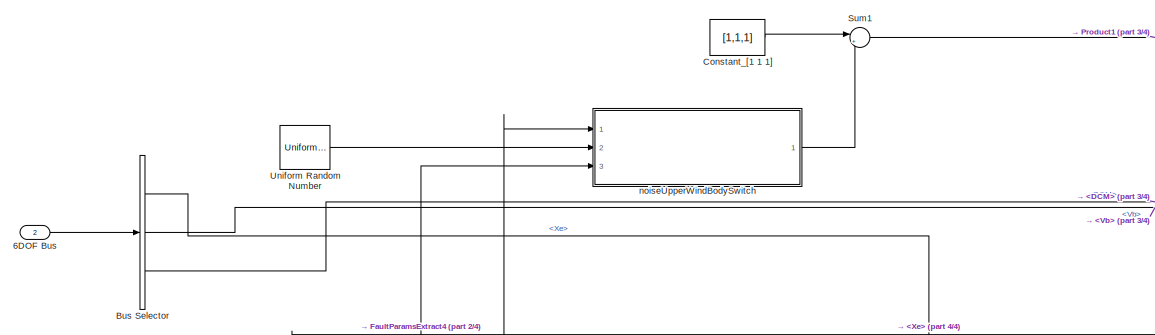
[diagram: WindFault - part 1/4, top center region]
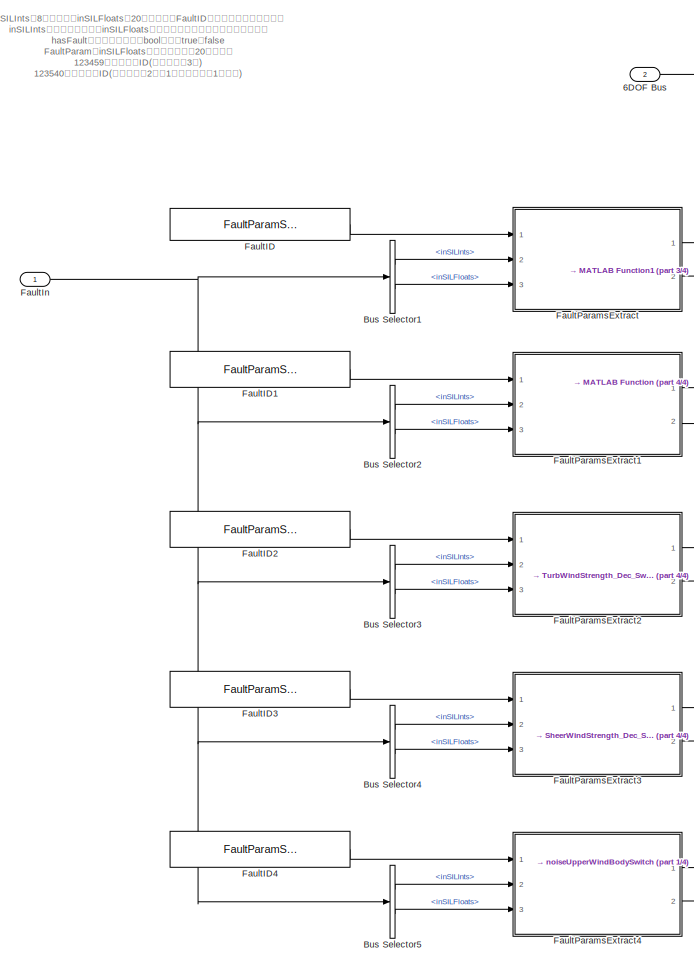
[diagram: WindFault - part 2/4, left side, full height]
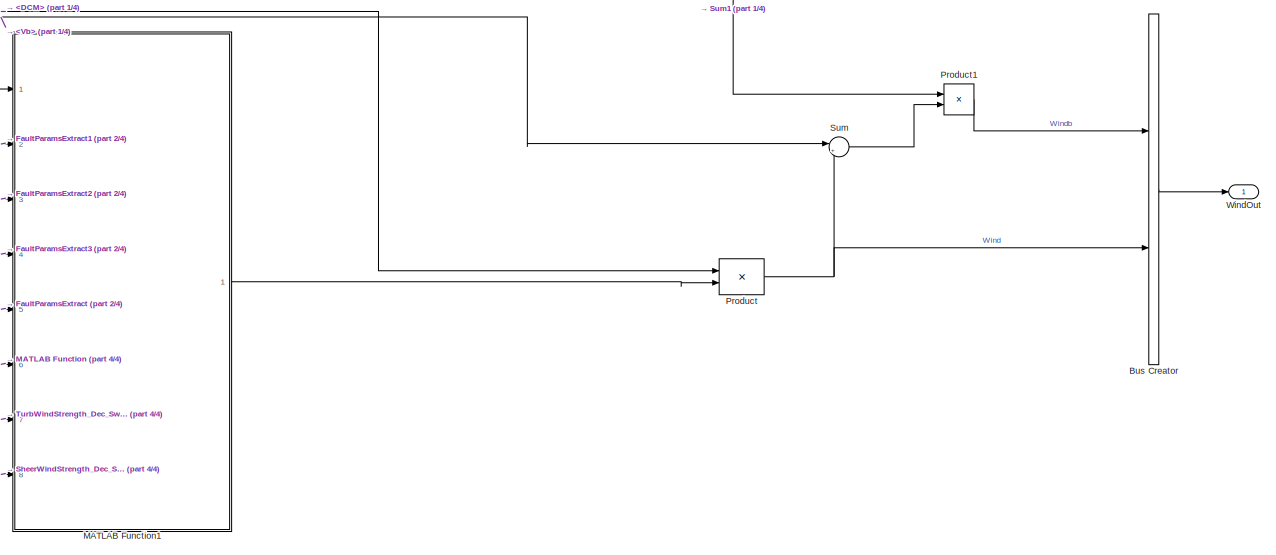
[diagram: WindFault - part 3/4, middle right region]
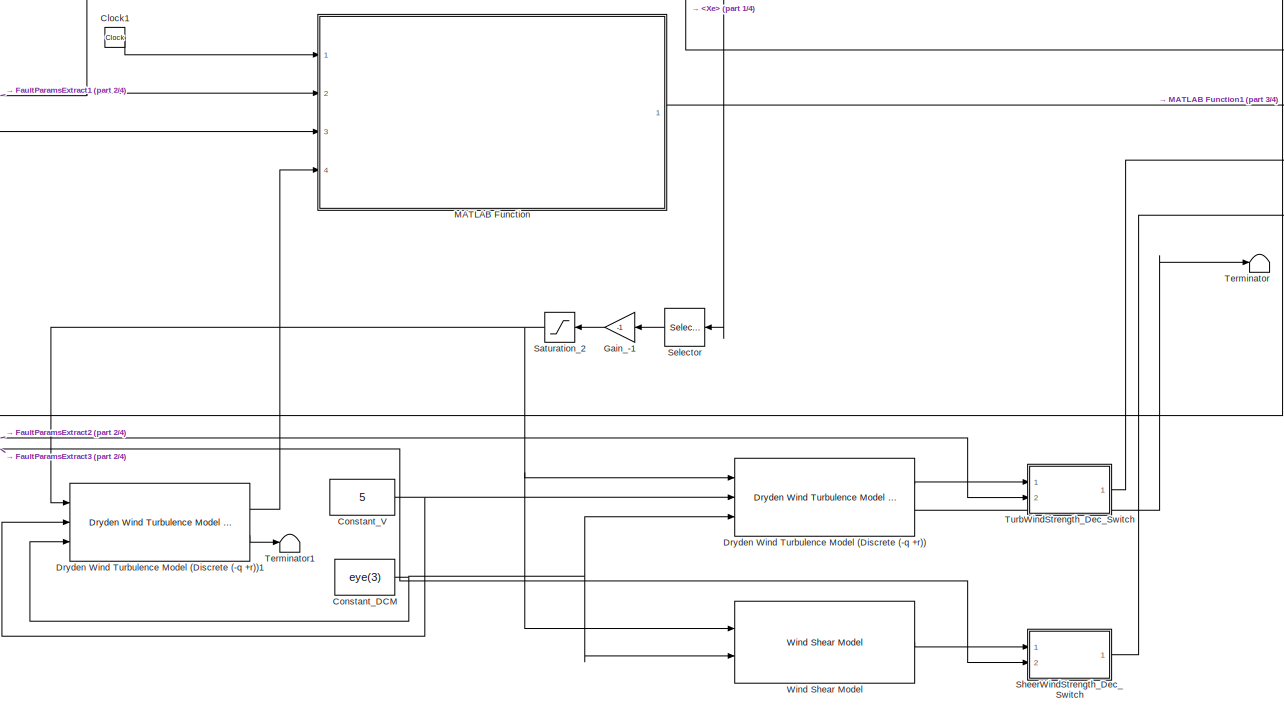
[diagram: WindFault - part 4/4, bottom center region]
BLOCK [SubSystem] WindFault
  Ports = [2, 1]
  RequestExecContextInheritance = off
BLOCK [Inport] WindFault/6DOF Bus
  Port = 2
BLOCK [BusCreator] WindFault/Bus Creator
  DisplayOption = bar
  InheritFromInputs = on
  Inputs = 2
  Ports = [2, 1]
BLOCK [BusSelector] WindFault/Bus Selector
  OutputSignals = Xe,Vb,DCM
  Ports = [1, 3]
BLOCK [BusSelector] WindFault/Bus Selector1
  OutputSignals = inSILInts,inSILFloats
  Ports = [1, 2]
BLOCK [BusSelector] WindFault/Bus Selector2
  OutputSignals = inSILInts,inSILFloats
  Ports = [1, 2]
BLOCK [BusSelector] WindFault/Bus Selector3
  OutputSignals = inSILInts,inSILFloats
  Ports = [1, 2]
BLOCK [BusSelector] WindFault/Bus Selector4
  OutputSignals = inSILInts,inSILFloats
  Ports = [1, 2]
BLOCK [BusSelector] WindFault/Bus Selector5
  OutputSignals = inSILInts,inSILFloats
  Ports = [1, 2]
BLOCK [Clock] WindFault/Clock1
BLOCK [Constant] WindFault/Constant_DCM
  Value = eye(3)
BLOCK [Constant] WindFault/Constant_V
  Value = 5
BLOCK [Constant] WindFault/Constant_[1 1 1]
  Value = [1,1,1]
  VectorParams1D = off
BLOCK [Reference] WindFault/Dryden Wind Turbulence Model (Discrete (-q +r))  REF=aerolibwind2/Dryden Wind Turbulence Model 
(Continuous (+q -r))
  Ports = [3, 2]
  SourceBlock = aerolibwind2/Dryden Wind Turbulence Model \n(Continuous (+q -r))
  SourceProductBaseCode = AE
  SourceType = Wind Turbulence Model
BLOCK [Reference] WindFault/Dryden Wind Turbulence Model (Discrete (-q +r))1  REF=aerolibwind2/Dryden Wind Turbulence Model 
(Continuous (+q -r))
  Ports = [3, 2]
  SourceBlock = aerolibwind2/Dryden Wind Turbulence Model \n(Continuous (+q -r))
  SourceProductBaseCode = AE
  SourceType = Wind Turbulence Model
BLOCK [Constant] WindFault/FaultID
  OutDataTypeStr = int32
  Value = FaultParamStruct.ConstWindFaultID
BLOCK [Constant] WindFault/FaultID1
  OutDataTypeStr = int32
  Value = FaultParamStruct.GustWindFaultID
BLOCK [Constant] WindFault/FaultID2
  OutDataTypeStr = int32
  Value = FaultParamStruct.TurbWindFaultID
BLOCK [Constant] WindFault/FaultID3
  OutDataTypeStr = int32
  Value = FaultParamStruct.SheerWindFaultID
BLOCK [Constant] WindFault/FaultID4
  OutDataTypeStr = int32
  Value = FaultParamStruct.NoiseWindFaultID
BLOCK [Inport] WindFault/FaultIn
BLOCK [SubSystem] WindFault/FaultParamsExtract
  ErrorFcn = Stateflow.Translate.translate
  PermitHierarchicalResolution = ExplicitOnly
  Ports = [3, 2]
  RequestExecContextInheritance = off
  SFBlockType = MATLAB Function
  TreatAsAtomicUnit = on
BLOCK [Demux] WindFault/FaultParamsExtract/ Demux 
  Outputs = 1
  Ports = [1, 1]
BLOCK [S-Function] WindFault/FaultParamsExtract/ SFunction 
  EnableBusSupport = off
  FunctionName = sf_sfun
  PortCounts = [3 3]
  Ports = [3, 3]
  SFcnIsStateOwnerBlock = off
  SFunctionDeploymentMode = off
  Tag = Stateflow S-Function 58
BLOCK [Terminator] WindFault/FaultParamsExtract/ Terminator 
BLOCK [Inport] WindFault/FaultParamsExtract/FaultID
BLOCK [Outport] WindFault/FaultParamsExtract/FaultParam
  Port = 2
  VectorParamsAs1DForOutWhenUnconnected = off
BLOCK [Outport] WindFault/FaultParamsExtract/hasFault_ConstWind
  VectorParamsAs1DForOutWhenUnconnected = off
BLOCK [Inport] WindFault/FaultParamsExtract/inFloats
  Port = 3
BLOCK [Inport] WindFault/FaultParamsExtract/inInts
  Port = 2
BLOCK [SubSystem] WindFault/FaultParamsExtract1
  ErrorFcn = Stateflow.Translate.translate
  PermitHierarchicalResolution = ExplicitOnly
  Ports = [3, 2]
  RequestExecContextInheritance = off
  SFBlockType = MATLAB Function
  TreatAsAtomicUnit = on
BLOCK [Demux] WindFault/FaultParamsExtract1/ Demux 
  Outputs = 1
  Ports = [1, 1]
BLOCK [S-Function] WindFault/FaultParamsExtract1/ SFunction 
  EnableBusSupport = off
  FunctionName = sf_sfun
  PortCounts = [3 3]
  Ports = [3, 3]
  SFcnIsStateOwnerBlock = off
  SFunctionDeploymentMode = off
  Tag = Stateflow S-Function 36
BLOCK [Terminator] WindFault/FaultParamsExtract1/ Terminator 
BLOCK [Inport] WindFault/FaultParamsExtract1/FaultID
BLOCK [Outport] WindFault/FaultParamsExtract1/FaultParam
  Port = 2
  VectorParamsAs1DForOutWhenUnconnected = off
BLOCK [Outport] WindFault/FaultParamsExtract1/hasFault_GustWind
  VectorParamsAs1DForOutWhenUnconnected = off
BLOCK [Inport] WindFault/FaultParamsExtract1/inFloats
  Port = 3
BLOCK [Inport] WindFault/FaultParamsExtract1/inInts
  Port = 2
BLOCK [SubSystem] WindFault/FaultParamsExtract2
  ErrorFcn = Stateflow.Translate.translate
  PermitHierarchicalResolution = ExplicitOnly
  Ports = [3, 2]
  RequestExecContextInheritance = off
  SFBlockType = MATLAB Function
  TreatAsAtomicUnit = on
BLOCK [Demux] WindFault/FaultParamsExtract2/ Demux 
  Outputs = 1
  Ports = [1, 1]
BLOCK [S-Function] WindFault/FaultParamsExtract2/ SFunction 
  EnableBusSupport = off
  FunctionName = sf_sfun
  PortCounts = [3 3]
  Ports = [3, 3]
  SFcnIsStateOwnerBlock = off
  SFunctionDeploymentMode = off
  Tag = Stateflow S-Function 59
BLOCK [Terminator] WindFault/FaultParamsExtract2/ Terminator 
BLOCK [Inport] WindFault/FaultParamsExtract2/FaultID
BLOCK [Outport] WindFault/FaultParamsExtract2/FaultParam
  Port = 2
  VectorParamsAs1DForOutWhenUnconnected = off
BLOCK [Outport] WindFault/FaultParamsExtract2/hasFault_TurbWind
  VectorParamsAs1DForOutWhenUnconnected = off
BLOCK [Inport] WindFault/FaultParamsExtract2/inFloats
  Port = 3
BLOCK [Inport] WindFault/FaultParamsExtract2/inInts
  Port = 2
BLOCK [SubSystem] WindFault/FaultParamsExtract3
  ErrorFcn = Stateflow.Translate.translate
  PermitHierarchicalResolution = ExplicitOnly
  Ports = [3, 2]
  RequestExecContextInheritance = off
  SFBlockType = MATLAB Function
  TreatAsAtomicUnit = on
BLOCK [Demux] WindFault/FaultParamsExtract3/ Demux 
  Outputs = 1
  Ports = [1, 1]
BLOCK [S-Function] WindFault/FaultParamsExtract3/ SFunction 
  EnableBusSupport = off
  FunctionName = sf_sfun
  PortCounts = [3 3]
  Ports = [3, 3]
  SFcnIsStateOwnerBlock = off
  SFunctionDeploymentMode = off
  Tag = Stateflow S-Function 60
BLOCK [Terminator] WindFault/FaultParamsExtract3/ Terminator 
BLOCK [Inport] WindFault/FaultParamsExtract3/FaultID
BLOCK [Outport] WindFault/FaultParamsExtract3/FaultParam
  Port = 2
  VectorParamsAs1DForOutWhenUnconnected = off
BLOCK [Outport] WindFault/FaultParamsExtract3/hasFault_SheerWind
  VectorParamsAs1DForOutWhenUnconnected = off
BLOCK [Inport] WindFault/FaultParamsExtract3/inFloats
  Port = 3
BLOCK [Inport] WindFault/FaultParamsExtract3/inInts
  Port = 2
BLOCK [SubSystem] WindFault/FaultParamsExtract4
  ErrorFcn = Stateflow.Translate.translate
  PermitHierarchicalResolution = ExplicitOnly
  Ports = [3, 2]
  RequestExecContextInheritance = off
  SFBlockType = MATLAB Function
  TreatAsAtomicUnit = on
BLOCK [Demux] WindFault/FaultParamsExtract4/ Demux 
  Outputs = 1
  Ports = [1, 1]
BLOCK [S-Function] WindFault/FaultParamsExtract4/ SFunction 
  EnableBusSupport = off
  FunctionName = sf_sfun
  PortCounts = [3 3]
  Ports = [3, 3]
  SFcnIsStateOwnerBlock = off
  SFunctionDeploymentMode = off
  Tag = Stateflow S-Function 37
BLOCK [Terminator] WindFault/FaultParamsExtract4/ Terminator 
BLOCK [Inport] WindFault/FaultParamsExtract4/FaultID
BLOCK [Outport] WindFault/FaultParamsExtract4/FaultParam
  Port = 2
  VectorParamsAs1DForOutWhenUnconnected = off
BLOCK [Outport] WindFault/FaultParamsExtract4/hasFault_WindNoise
  VectorParamsAs1DForOutWhenUnconnected = off
BLOCK [Inport] WindFault/FaultParamsExtract4/inFloats
  Port = 3
BLOCK [Inport] WindFault/FaultParamsExtract4/inInts
  Port = 2
BLOCK [Gain] WindFault/Gain_-1
  Gain = -1
BLOCK [SubSystem] WindFault/MATLAB Function
  ErrorFcn = Stateflow.Translate.translate
  PermitHierarchicalResolution = ExplicitOnly
  Ports = [4, 1]
  RequestExecContextInheritance = off
  SFBlockType = MATLAB Function
  TreatAsAtomicUnit = on
BLOCK [Demux] WindFault/MATLAB Function/ Demux 
  Outputs = 1
  Ports = [1, 1]
BLOCK [S-Function] WindFault/MATLAB Function/ SFunction 
  EnableBusSupport = off
  FunctionName = sf_sfun
  PortCounts = [4 2]
  Ports = [4, 2]
  SFcnIsStateOwnerBlock = off
  SFunctionDeploymentMode = off
  Tag = Stateflow S-Function 28
BLOCK [Terminator] WindFault/MATLAB Function/ Terminator 
BLOCK [Inport] WindFault/MATLAB Function/GustWindParams
  Port = 3
BLOCK [Outport] WindFault/MATLAB Function/gWind
  VectorParamsAs1DForOutWhenUnconnected = off
BLOCK [Inport] WindFault/MATLAB Function/isGustWind
  Port = 2
BLOCK [Inport] WindFault/MATLAB Function/t
BLOCK [Inport] WindFault/MATLAB Function/turb
  Port = 4
BLOCK [SubSystem] WindFault/MATLAB Function1
  ErrorFcn = Stateflow.Translate.translate
  PermitHierarchicalResolution = ExplicitOnly
  Ports = [8, 1]
  RequestExecContextInheritance = off
  SFBlockType = MATLAB Function
  TreatAsAtomicUnit = on
BLOCK [Demux] WindFault/MATLAB Function1/ Demux 
  Outputs = 1
  Ports = [1, 1]
BLOCK [S-Function] WindFault/MATLAB Function1/ SFunction 
  EnableBusSupport = off
  FunctionName = sf_sfun
  PortCounts = [8 2]
  Ports = [8, 2]
  SFcnIsStateOwnerBlock = off
  SFunctionDeploymentMode = off
  Tag = Stateflow S-Function 29
BLOCK [Terminator] WindFault/MATLAB Function1/ Terminator 
BLOCK [Inport] WindFault/MATLAB Function1/ConstWind
  Port = 5
BLOCK [Inport] WindFault/MATLAB Function1/GustWind
  Port = 6
BLOCK [Inport] WindFault/MATLAB Function1/SheerWind
  Port = 8
BLOCK [Inport] WindFault/MATLAB Function1/TurbWind
  Port = 7
BLOCK [Inport] WindFault/MATLAB Function1/isConstWind
BLOCK [Inport] WindFault/MATLAB Function1/isGustWind
  Port = 2
BLOCK [Inport] WindFault/MATLAB Function1/isSheerWind
  Port = 4
BLOCK [Inport] WindFault/MATLAB Function1/isTurbWind
  Port = 3
BLOCK [Outport] WindFault/MATLAB Function1/wind
  VectorParamsAs1DForOutWhenUnconnected = off
BLOCK [Product] WindFault/Product
  Multiplication = Matrix(*)
  Ports = [2, 1]
BLOCK [Product] WindFault/Product1
  Ports = [2, 1]
BLOCK [Saturate] WindFault/Saturation_2
  LowerLimit = 0
  UpperLimit = 10000
BLOCK [Selector] WindFault/Selector
  IndexOptions = Index vector (dialog)
  Indices = [3]
  InputPortWidth = 3
  OutputSizes = 1
  Ports = [1, 1]
BLOCK [SubSystem] WindFault/SheerWindStrength_Dec_Switch
  ErrorFcn = Stateflow.Translate.translate
  PermitHierarchicalResolution = ExplicitOnly
  Ports = [2, 1]
  RequestExecContextInheritance = off
  SFBlockType = MATLAB Function
  TreatAsAtomicUnit = on
BLOCK [Demux] WindFault/SheerWindStrength_Dec_Switch/ Demux 
  Outputs = 1
  Ports = [1, 1]
BLOCK [S-Function] WindFault/SheerWindStrength_Dec_Switch/ SFunction 
  EnableBusSupport = off
  FunctionName = sf_sfun
  PortCounts = [2 2]
  Ports = [2, 2]
  SFcnIsStateOwnerBlock = off
  SFunctionDeploymentMode = off
  Tag = Stateflow S-Function 42
BLOCK [Terminator] WindFault/SheerWindStrength_Dec_Switch/ Terminator 
BLOCK [Outport] WindFault/SheerWindStrength_Dec_Switch/SheerWind
BLOCK [Inport] WindFault/SheerWindStrength_Dec_Switch/SheerWindParams
  Port = 2
BLOCK [Inport] WindFault/SheerWindStrength_Dec_Switch/vwind
BLOCK [Sum] WindFault/Sum
  Inputs = |+-
  Ports = [2, 1]
BLOCK [Sum] WindFault/Sum1
  Inputs = |++
  Ports = [2, 1]
BLOCK [Terminator] WindFault/Terminator
BLOCK [Terminator] WindFault/Terminator1
BLOCK [SubSystem] WindFault/TurbWindStrength_Dec_Switch
  ErrorFcn = Stateflow.Translate.translate
  PermitHierarchicalResolution = ExplicitOnly
  Ports = [2, 1]
  RequestExecContextInheritance = off
  SFBlockType = MATLAB Function
  TreatAsAtomicUnit = on
BLOCK [Demux] WindFault/TurbWindStrength_Dec_Switch/ Demux 
  Outputs = 1
  Ports = [1, 1]
BLOCK [S-Function] WindFault/TurbWindStrength_Dec_Switch/ SFunction 
  EnableBusSupport = off
  FunctionName = sf_sfun
  PortCounts = [2 2]
  Ports = [2, 2]
  SFcnIsStateOwnerBlock = off
  SFunctionDeploymentMode = off
  Tag = Stateflow S-Function 40
BLOCK [Terminator] WindFault/TurbWindStrength_Dec_Switch/ Terminator 
BLOCK [Outport] WindFault/TurbWindStrength_Dec_Switch/TurbWind
BLOCK [Inport] WindFault/TurbWindStrength_Dec_Switch/TurbWindParams
  Port = 2
BLOCK [Inport] WindFault/TurbWindStrength_Dec_Switch/vwind
BLOCK [UniformRandomNumber] WindFault/Uniform Random Number
  Maximum = [1,1,0.5]
  Minimum = [-1,-1,-0.5]
  SampleTime = 0.003
  Seed = [564565,6846798,46545]
BLOCK [Reference] WindFault/Wind Shear Model  REF=aerolibwind2/Wind Shear Model
  Ports = [2, 1]
  SourceBlock = aerolibwind2/Wind Shear Model
  SourceProductBaseCode = AE
  SourceType = Wind Shear Model
BLOCK [Outport] WindFault/WindOut
BLOCK [SubSystem] WindFault/noiseUpperWindBodySwitch
  ErrorFcn = Stateflow.Translate.translate
  PermitHierarchicalResolution = ExplicitOnly
  Ports = [3, 1]
  RequestExecContextInheritance = off
  SFBlockType = MATLAB Function
  TreatAsAtomicUnit = on
BLOCK [Demux] WindFault/noiseUpperWindBodySwitch/ Demux 
  Outputs = 1
  Ports = [1, 1]
BLOCK [S-Function] WindFault/noiseUpperWindBodySwitch/ SFunction 
  EnableBusSupport = off
  FunctionName = sf_sfun
  PortCounts = [3 2]
  Ports = [3, 2]
  SFcnIsStateOwnerBlock = off
  SFunctionDeploymentMode = off
  Tag = Stateflow S-Function 47
BLOCK [Terminator] WindFault/noiseUpperWindBodySwitch/ Terminator 
BLOCK [Inport] WindFault/noiseUpperWindBodySwitch/Noise
  Port = 2
BLOCK [Inport] WindFault/noiseUpperWindBodySwitch/NoiseParams
BLOCK [Inport] WindFault/noiseUpperWindBodySwitch/isNoiseFault
  Port = 3
BLOCK [Outport] WindFault/noiseUpperWindBodySwitch/y
ANNOTATION BatteryFault: inSILInts是8维的输入，inSILFloats是20维的输入，FaultID是本故障的唯一标识密钥 inSILInts的每一位，对应了inSILFloats的两位数字，用于将故障参数传进来。 hasFault为是否有故障注入bool变量，true或false FaultParam和inSILFloats维度相同，都是20维浮点数 123452为用户自定义悬停故障ID(1个故障参数，为悬停时间) 123453为电池失效故障ID(0个故障参数) 123454为低电压故障ID(1个故障参数，剩余电压因子) 123455为低电量故障ID(1个故障参数，剩余电量因子) 注：如果没有新的故障注入进来，FaultParamsExtract会保持上一时刻的值。
ANNOTATION GPSFault: inSILInts是8维的输入，inSILFloats是20维的输入，FaultID是本故障的唯一标识密钥 inSILInts的每一位，对应了inSILFloats的两位数字，用于将故障参数传进来。 hasFault为是否有故障注入bool变量，true或false FaultParam和inSILFloats维度相同，都是20维浮点数 123548为GPS故障ID 注：如果没有新的故障注入进来，FaultParamsExtract会保持上一时刻的值。
ANNOTATION LoadFault: inSILInts是8维的输入，inSILFloats是20维的输入，FaultID是本故障的唯一标识密钥 inSILInts的每一位，对应了inSILFloats的两位数字，用于将故障参数传进来。 hasFault为是否有故障注入bool变量，true或false FaultParam和inSILFloats维度相同，都是20维浮点数 123456为负载掉落故障ID(1个故障参数，重量泄露比) 123457为负载漂移故障ID(4个故障参数，重量泄露比，x，y，z的漂移因子) 123458为负载泄露故障ID(2个故障参数，1个重量泄露比，1个泄露因子) 注：如果没有新的故障注入进来，FaultParamsExtract会保持上一时刻的值。
ANNOTATION MotorFault: inSILInts是8维的输入，inSILFloats是20维的输入，FaultID是本故障的唯一标识密钥 inSILInts的每一位，对应了inSILFloats的两位数字，用于将故障参数传进来。 hasFault为是否有故障注入bool变量，true或false FaultParam和inSILFloats维度相同，都是20维浮点数 123450为电机故障ID 注：如果没有新的故障注入进来，FaultParamsExtract会保持上一时刻的值。
ANNOTATION PropFault: inSILInts是8维的输入，inSILFloats是20维的输入，FaultID是本故障的唯一标识密钥 inSILInts的每一位，对应了inSILFloats的两位数字，用于将故障参数传进来。 hasFault为是否有故障注入bool变量，true或false FaultParam和inSILFloats维度相同，都是20维浮点数 123451为螺旋桨故障ID 注：如果没有新的故障注入进来，FaultParamsExtract会保持上一时刻的值。
ANNOTATION SensorFault: inSILInts是8维的输入，inSILFloats是20维的输入，FaultID是本故障的唯一标识密钥 inSILInts的每一位，对应了inSILFloats的两位数字，用于将故障参数传进来。 hasFault为是否有故障注入bool变量，true或false FaultParam和inSILFloats维度相同，都是20维浮点数 123544为加速度计故障ID 123545为陀螺仪故障ID 123546为磁力计故障ID 123547为气压计故障ID 注：如果没有新的故障注入进来，FaultParamsExtract会保持上一时刻的值。
ANNOTATION WindFault: inSILInts是8维的输入，inSILFloats是20维的输入，FaultID是本故障的唯一标识密钥 inSILInts的每一位，对应了inSILFloats的两位数字，用于将故障参数传进来。 hasFault为是否有故障注入bool变量，true或false FaultParam和inSILFloats维度相同，都是20维浮点数 123459为常风故障ID(故障参数为3个) 123540为阵风故障ID(故障参数为2个，1个阵风强度，1个方向) 123541为紊流风故障ID(故障参数为1个，强度) 123542为切向风故障ID(故障参数为1个，强度) 123543为噪声风故障ID(参数为2个，1格式风振幅扰动因子范围0到1,1个风增益水平）) 注：如果没有新的故障注入进来，FaultParamsExtract会保持上一时刻的值。
LINE BatteryFault/Bus Creator:1 -> BatteryFault/BatteryFaultParam:1
LINE BatteryFault/Bus Selector1:1 -> BatteryFault/FaultParamsExtract1:2
LINE BatteryFault/Bus Selector1:2 -> BatteryFault/FaultParamsExtract1:3
LINE BatteryFault/Bus Selector2:1 -> BatteryFault/FaultParamsExtract2:2
LINE BatteryFault/Bus Selector2:2 -> BatteryFault/FaultParamsExtract2:3
LINE BatteryFault/Bus Selector3:1 -> BatteryFault/FaultParamsExtract3:2
LINE BatteryFault/Bus Selector3:2 -> BatteryFault/FaultParamsExtract3:3
LINE BatteryFault/Bus Selector:1 -> BatteryFault/FaultParamsExtract:2
LINE BatteryFault/Bus Selector:2 -> BatteryFault/FaultParamsExtract:3
LINE BatteryFault/FaultID1:1 -> BatteryFault/FaultParamsExtract1:1
LINE BatteryFault/FaultID2:1 -> BatteryFault/FaultParamsExtract2:1
LINE BatteryFault/FaultID3:1 -> BatteryFault/FaultParamsExtract3:1
LINE BatteryFault/FaultID:1 -> BatteryFault/FaultParamsExtract:1
NET BatteryFault/FaultIn:1 -> BatteryFault/Bus Selector1:1, BatteryFault/Bus Selector2:1, BatteryFault/Bus Selector3:1, BatteryFault/Bus Selector:1
LINE BatteryFault/FaultParamsExtract1:1 -> BatteryFault/Bus Creator:3
LINE BatteryFault/FaultParamsExtract1:2 -> BatteryFault/Terminator1:1
LINE BatteryFault/FaultParamsExtract2:1 -> BatteryFault/Bus Creator:4
LINE BatteryFault/FaultParamsExtract2:2 -> BatteryFault/Bus Creator:5
LINE BatteryFault/FaultParamsExtract3:1 -> BatteryFault/Bus Creator:6
LINE BatteryFault/FaultParamsExtract3:2 -> BatteryFault/Bus Creator:7
LINE BatteryFault/FaultParamsExtract:1 -> BatteryFault/Bus Creator:1
LINE BatteryFault/FaultParamsExtract:2 -> BatteryFault/Bus Creator:2
LINE GPSFault/Acc NoiseFun:1 -> GPSFault/Mux1:1
LINE GPSFault/Acc NoiseFun:2 -> GPSFault/Mux1:2
LINE GPSFault/Acc NoiseFun:3 -> GPSFault/Mux1:3
LINE GPSFault/Bus Selector:1 -> GPSFault/FaultParamsExtract:2
LINE GPSFault/Bus Selector:2 -> GPSFault/FaultParamsExtract:3
LINE GPSFault/FaultID:1 -> GPSFault/FaultParamsExtract:1
LINE GPSFault/FaultIn:1 -> GPSFault/Bus Selector:1
LINE GPSFault/FaultParamsExtract:1 -> GPSFault/Acc NoiseFun:2
LINE GPSFault/FaultParamsExtract:2 -> GPSFault/Acc NoiseFun:3
LINE GPSFault/Flat Earth to LLA:1 -> GPSFault/Mux:1
LINE GPSFault/Flat Earth to LLA:2 -> GPSFault/Saturation:1
LINE GPSFault/ModelParam.envAltitude:1 -> GPSFault/Flat Earth to LLA:2
LINE GPSFault/Mux1:1 -> GPSFault/GPSOut:1
LINE GPSFault/Mux:1 -> GPSFault/Acc NoiseFun:1
LINE GPSFault/Saturation:1 -> GPSFault/Mux:2
LINE GPSFault/Xe:1 -> GPSFault/Flat Earth to LLA:1
LINE LoadFault/Bus Creator:1 -> LoadFault/LoadFaultParam:1
LINE LoadFault/Bus Selector2:1 -> LoadFault/FaultParamsExtract1:2
LINE LoadFault/Bus Selector2:2 -> LoadFault/FaultParamsExtract1:3
LINE LoadFault/Bus Selector3:1 -> LoadFault/FaultParamsExtract2:2
LINE LoadFault/Bus Selector3:2 -> LoadFault/FaultParamsExtract2:3
LINE LoadFault/Bus Selector:1 -> LoadFault/FaultParamsExtract3:2
LINE LoadFault/Bus Selector:2 -> LoadFault/FaultParamsExtract3:3
LINE LoadFault/FaultID1:1 -> LoadFault/FaultParamsExtract1:1
LINE LoadFault/FaultID2:1 -> LoadFault/FaultParamsExtract2:1
LINE LoadFault/FaultID:1 -> LoadFault/FaultParamsExtract3:1
NET LoadFault/FaultIn:1 -> LoadFault/Bus Selector2:1, LoadFault/Bus Selector3:1, LoadFault/Bus Selector:1
LINE LoadFault/FaultParamsExtract1:1 -> LoadFault/Bus Creator:3
LINE LoadFault/FaultParamsExtract1:2 -> LoadFault/Bus Creator:4
LINE LoadFault/FaultParamsExtract2:1 -> LoadFault/Bus Creator:5
LINE LoadFault/FaultParamsExtract2:2 -> LoadFault/Bus Creator:6
LINE LoadFault/FaultParamsExtract3:1 -> LoadFault/Bus Creator:1
LINE LoadFault/FaultParamsExtract3:2 -> LoadFault/Bus Creator:2
LINE MotorFault/Bus Selector:1 -> MotorFault/FaultParamsExtract:2
LINE MotorFault/Bus Selector:2 -> MotorFault/FaultParamsExtract:3
LINE MotorFault/FaultID:1 -> MotorFault/FaultParamsExtract:1
LINE MotorFault/FaultIn:1 -> MotorFault/Bus Selector:1
LINE MotorFault/FaultParamsExtract:1 -> MotorFault/MotorFaultModel:2
LINE MotorFault/FaultParamsExtract:2 -> MotorFault/MotorFaultModel:3
LINE MotorFault/MotorFaultModel:1 -> MotorFault/PWMOut:1
LINE MotorFault/MotorNum:1 -> MotorFault/MotorFaultModel:4
LINE MotorFault/PWMIn:1 -> MotorFault/MotorFaultModel:1
LINE PropFault/Band-Limited White Noise:1 -> PropFault/Gain:1
LINE PropFault/Bus Selector:1 -> PropFault/FaultParamsExtract:2
LINE PropFault/Bus Selector:2 -> PropFault/FaultParamsExtract:3
LINE PropFault/Constant:1 -> PropFault/Discrete Wind Gust Model:1
LINE PropFault/Discrete Wind Gust Model:1 -> PropFault/Selector:1
LINE PropFault/FaultID1:1 -> PropFault/PropFaultModel:4
LINE PropFault/FaultID:1 -> PropFault/FaultParamsExtract:1
LINE PropFault/FaultIn:1 -> PropFault/Bus Selector:1
LINE PropFault/FaultParamsExtract:1 -> PropFault/PropFaultModel:1
LINE PropFault/FaultParamsExtract:2 -> PropFault/PropFaultModel:2
LINE PropFault/Gain:1 -> PropFault/Sum:1
LINE PropFault/PWMIn:1 -> PropFault/PropFaultModel:3
LINE PropFault/PropFaultModel:1 -> PropFault/MotorRads:1
LINE PropFault/Selector:1 -> PropFault/Sum:2
LINE PropFault/Sum:1 -> PropFault/PropFaultModel:5
LINE SensorFault/Ab:1 -> SensorFault/Three-axis Inertial Measurement Unit3:1
LINE SensorFault/Acc NoiseFun:1 -> SensorFault/Data Type Conversion2:1
LINE SensorFault/Add2:1 -> SensorFault/baro NoiseFun:1
LINE SensorFault/Bus Creator:1 -> SensorFault/Sensorout:1
LINE SensorFault/Bus Selector1:1 -> SensorFault/FaultParamsExtract1:2
LINE SensorFault/Bus Selector1:2 -> SensorFault/FaultParamsExtract1:3
LINE SensorFault/Bus Selector2:1 -> SensorFault/FaultParamsExtract2:2
LINE SensorFault/Bus Selector2:2 -> SensorFault/FaultParamsExtract2:3
LINE SensorFault/Bus Selector3:1 -> SensorFault/FaultParamsExtract3:2
LINE SensorFault/Bus Selector3:2 -> SensorFault/FaultParamsExtract3:3
LINE SensorFault/Bus Selector:1 -> SensorFault/FaultParamsExtract:2
LINE SensorFault/Bus Selector:2 -> SensorFault/FaultParamsExtract:3
NET SensorFault/DCMbe:1 -> SensorFault/Matrix Multiply1:1, SensorFault/Matrix Multiply2:1
LINE SensorFault/Data Type Conversion1:1 -> SensorFault/Bus Creator:5
LINE SensorFault/Data Type Conversion2:1 -> SensorFault/Bus Creator:1
LINE SensorFault/Data Type Conversion3:1 -> SensorFault/Bus Creator:2
LINE SensorFault/Data Type Conversion4:1 -> SensorFault/Bus Creator:3
LINE SensorFault/Data Type Conversion5:1 -> SensorFault/Bus Creator:4
LINE SensorFault/Demux2:1 -> SensorFault/World Magnetic Model 2015:2
LINE SensorFault/Demux2:2 -> SensorFault/World Magnetic Model 2015:3
NET SensorFault/Demux2:3 -> SensorFault/Add2:2, SensorFault/World Magnetic Model 2015:1
NET SensorFault/Dynamic Pressure:1 -> SensorFault/Add2:1, SensorFault/Gain1:1
LINE SensorFault/FaultID1:1 -> SensorFault/FaultParamsExtract1:1
LINE SensorFault/FaultID2:1 -> SensorFault/FaultParamsExtract2:1
LINE SensorFault/FaultID3:1 -> SensorFault/FaultParamsExtract3:1
LINE SensorFault/FaultID:1 -> SensorFault/FaultParamsExtract:1
LINE SensorFault/FaultParamsExtract1:1 -> SensorFault/Gyro NoiseFun:2
LINE SensorFault/FaultParamsExtract1:2 -> SensorFault/Gyro NoiseFun:3
LINE SensorFault/FaultParamsExtract2:1 -> SensorFault/Mag NoiseFun:2
LINE SensorFault/FaultParamsExtract2:2 -> SensorFault/Mag NoiseFun:3
LINE SensorFault/FaultParamsExtract3:1 -> SensorFault/baro NoiseFun:2
LINE SensorFault/FaultParamsExtract3:2 -> SensorFault/baro NoiseFun:3
LINE SensorFault/FaultParamsExtract:1 -> SensorFault/Acc NoiseFun:2
LINE SensorFault/FaultParamsExtract:2 -> SensorFault/Acc NoiseFun:3
NET SensorFault/Faultin:1 -> SensorFault/Bus Selector1:1, SensorFault/Bus Selector2:1, SensorFault/Bus Selector3:1, SensorFault/Bus Selector:1
LINE SensorFault/GPSPos:1 -> SensorFault/Demux2:1
LINE SensorFault/Gain1:1 -> SensorFault/Sum:2
LINE SensorFault/Gain5:1 -> SensorFault/GyroNoiseSwitch3:1
LINE SensorFault/Gain9:1 -> SensorFault/GyroNoiseSwitch4:1
LINE SensorFault/Gain:1 -> SensorFault/Mux:1
LINE SensorFault/Gain_Mag:1 -> SensorFault/nT2Gauss:1
LINE SensorFault/Gravity:1 -> SensorFault/Matrix Multiply1:2
LINE SensorFault/Gyro NoiseFun:1 -> SensorFault/Data Type Conversion3:1
LINE SensorFault/GyroNoiseSwitch3/Constant2:1 -> SensorFault/GyroNoiseSwitch3/Product4:2
LINE SensorFault/GyroNoiseSwitch3/In1:1 -> SensorFault/GyroNoiseSwitch3/Product4:1
LINE SensorFault/GyroNoiseSwitch3/Product4:1 -> SensorFault/GyroNoiseSwitch3/Out1:1
LINE SensorFault/GyroNoiseSwitch3:1 -> SensorFault/Add2:3
LINE SensorFault/GyroNoiseSwitch4/Constant2:1 -> SensorFault/GyroNoiseSwitch4/Sum:2
LINE SensorFault/GyroNoiseSwitch4/Constant:1 -> SensorFault/GyroNoiseSwitch4/Gain2:1
LINE SensorFault/GyroNoiseSwitch4/Gain2:1 -> SensorFault/GyroNoiseSwitch4/Sum:1
LINE SensorFault/GyroNoiseSwitch4/In1:1 -> SensorFault/GyroNoiseSwitch4/Product4:1
LINE SensorFault/GyroNoiseSwitch4/Product4:1 -> SensorFault/GyroNoiseSwitch4/Out1:1
LINE SensorFault/GyroNoiseSwitch4/Sum:1 -> SensorFault/GyroNoiseSwitch4/Product4:2
LINE SensorFault/GyroNoiseSwitch4:1 -> SensorFault/Sum:1
LINE SensorFault/ISA Atmosphere Model:1 -> SensorFault/Terminator1:1
LINE SensorFault/ISA Atmosphere Model:2 -> SensorFault/Terminator2:1
LINE SensorFault/ISA Atmosphere Model:3 -> SensorFault/Gain:1
LINE SensorFault/ISA Atmosphere Model:4 -> SensorFault/Terminator4:1
LINE SensorFault/LowPassFilter/Demux1:1 -> SensorFault/LowPassFilter/x:1
LINE SensorFault/LowPassFilter/Demux1:2 -> SensorFault/LowPassFilter/y:1
LINE SensorFault/LowPassFilter/Demux1:3 -> SensorFault/LowPassFilter/z:1
LINE SensorFault/LowPassFilter/Mux1:1 -> SensorFault/LowPassFilter/gyroDataOut:1
LINE SensorFault/LowPassFilter/gyroDataIn:1 -> SensorFault/LowPassFilter/Demux1:1
LINE SensorFault/LowPassFilter/x:1 -> SensorFault/LowPassFilter/Mux1:1
LINE SensorFault/LowPassFilter/y:1 -> SensorFault/LowPassFilter/Mux1:2
LINE SensorFault/LowPassFilter/z:1 -> SensorFault/LowPassFilter/Mux1:3
LINE SensorFault/LowPassFilter2/Demux1:1 -> SensorFault/LowPassFilter2/x:1
LINE SensorFault/LowPassFilter2/Demux1:2 -> SensorFault/LowPassFilter2/y:1
LINE SensorFault/LowPassFilter2/Demux1:3 -> SensorFault/LowPassFilter2/z:1
LINE SensorFault/LowPassFilter2/Mux1:1 -> SensorFault/LowPassFilter2/accelDataOut:1
LINE SensorFault/LowPassFilter2/accelDataIn:1 -> SensorFault/LowPassFilter2/Demux1:1
LINE SensorFault/LowPassFilter2/x:1 -> SensorFault/LowPassFilter2/Mux1:1
LINE SensorFault/LowPassFilter2/y:1 -> SensorFault/LowPassFilter2/Mux1:2
LINE SensorFault/LowPassFilter2/z:1 -> SensorFault/LowPassFilter2/Mux1:3
LINE SensorFault/Mag NoiseFun:1 -> SensorFault/Data Type Conversion4:1
LINE SensorFault/Matrix Multiply1:1 -> SensorFault/Three-axis Inertial Measurement Unit3:5
LINE SensorFault/Matrix Multiply2:1 -> SensorFault/Gain_Mag:1
LINE SensorFault/Mux:1 -> SensorFault/Data Type Conversion5:1
LINE SensorFault/NoiseFilter/Demux:1 -> SensorFault/NoiseFilter/Transfer Fcn4:1
LINE SensorFault/NoiseFilter/Demux:2 -> SensorFault/NoiseFilter/Transfer Fcn5:1
LINE SensorFault/NoiseFilter/Demux:3 -> SensorFault/NoiseFilter/Transfer Fcn6:1
LINE SensorFault/NoiseFilter/In1:1 -> SensorFault/NoiseFilter/Demux:1
LINE SensorFault/NoiseFilter/Mux1:1 -> SensorFault/NoiseFilter/Out1:1
LINE SensorFault/NoiseFilter/Transfer Fcn4:1 -> SensorFault/NoiseFilter/Mux1:1
LINE SensorFault/NoiseFilter/Transfer Fcn5:1 -> SensorFault/NoiseFilter/Mux1:2
LINE SensorFault/NoiseFilter/Transfer Fcn6:1 -> SensorFault/NoiseFilter/Mux1:3
LINE SensorFault/NoiseFilter1/Demux:1 -> SensorFault/NoiseFilter1/Transfer Fcn4:1
LINE SensorFault/NoiseFilter1/Demux:2 -> SensorFault/NoiseFilter1/Transfer Fcn5:1
LINE SensorFault/NoiseFilter1/Demux:3 -> SensorFault/NoiseFilter1/Transfer Fcn6:1
LINE SensorFault/NoiseFilter1/In1:1 -> SensorFault/NoiseFilter1/Demux:1
LINE SensorFault/NoiseFilter1/Mux1:1 -> SensorFault/NoiseFilter1/Out1:1
LINE SensorFault/NoiseFilter1/Transfer Fcn4:1 -> SensorFault/NoiseFilter1/Mux1:1
LINE SensorFault/NoiseFilter1/Transfer Fcn5:1 -> SensorFault/NoiseFilter1/Mux1:2
LINE SensorFault/NoiseFilter1/Transfer Fcn6:1 -> SensorFault/NoiseFilter1/Mux1:3
LINE SensorFault/NoiseFilter2/Demux:1 -> SensorFault/NoiseFilter2/Transfer Fcn4:1
LINE SensorFault/NoiseFilter2/Demux:2 -> SensorFault/NoiseFilter2/Transfer Fcn5:1
LINE SensorFault/NoiseFilter2/Demux:3 -> SensorFault/NoiseFilter2/Transfer Fcn6:1
LINE SensorFault/NoiseFilter2/In1:1 -> SensorFault/NoiseFilter2/Demux:1
LINE SensorFault/NoiseFilter2/Mux1:1 -> SensorFault/NoiseFilter2/Out1:1
LINE SensorFault/NoiseFilter2/Transfer Fcn4:1 -> SensorFault/NoiseFilter2/Mux1:1
LINE SensorFault/NoiseFilter2/Transfer Fcn5:1 -> SensorFault/NoiseFilter2/Mux1:2
LINE SensorFault/NoiseFilter2/Transfer Fcn6:1 -> SensorFault/NoiseFilter2/Mux1:3
LINE SensorFault/Sum:1 -> SensorFault/Mux:2
LINE SensorFault/TempC:1 -> SensorFault/Mux:4
LINE SensorFault/Three-axis Inertial Measurement Unit3:1 -> SensorFault/Acc NoiseFun:1
LINE SensorFault/Three-axis Inertial Measurement Unit3:2 -> SensorFault/Gyro NoiseFun:1
LINE SensorFault/Uniform Random Number4:1 -> SensorFault/Gain9:1
LINE SensorFault/Uniform Random Number:1 -> SensorFault/Gain5:1
LINE SensorFault/World Magnetic Model 2015:1 -> SensorFault/Matrix Multiply2:2
LINE SensorFault/World Magnetic Model 2015:2 -> SensorFault/magDecGain:1
NET SensorFault/baro NoiseFun:1 -> SensorFault/ISA Atmosphere Model:1, SensorFault/Mux:3
LINE SensorFault/center of gravity:1 -> SensorFault/Three-axis Inertial Measurement Unit3:4
LINE SensorFault/dwt:1 -> SensorFault/Three-axis Inertial Measurement Unit3:3
LINE SensorFault/magDecGain:1 -> SensorFault/Data Type Conversion1:1
LINE SensorFault/nT2Gauss:1 -> SensorFault/Mag NoiseFun:1
LINE SensorFault/pressure:1 -> SensorFault/Terminator3:1
LINE SensorFault/rho:1 -> SensorFault/Dynamic Pressure:2
LINE SensorFault/wb:1 -> SensorFault/Three-axis Inertial Measurement Unit3:2
LINE SensorFault/windB:1 -> SensorFault/Dynamic Pressure:1
LINE WindFault/6DOF Bus:1 -> WindFault/Bus Selector:1
LINE WindFault/Bus Creator:1 -> WindFault/WindOut:1
LINE WindFault/Bus Selector1:1 -> WindFault/FaultParamsExtract:2
LINE WindFault/Bus Selector1:2 -> WindFault/FaultParamsExtract:3
LINE WindFault/Bus Selector2:1 -> WindFault/FaultParamsExtract1:2
LINE WindFault/Bus Selector2:2 -> WindFault/FaultParamsExtract1:3
LINE WindFault/Bus Selector3:1 -> WindFault/FaultParamsExtract2:2
LINE WindFault/Bus Selector3:2 -> WindFault/FaultParamsExtract2:3
LINE WindFault/Bus Selector4:1 -> WindFault/FaultParamsExtract3:2
LINE WindFault/Bus Selector4:2 -> WindFault/FaultParamsExtract3:3
LINE WindFault/Bus Selector5:1 -> WindFault/FaultParamsExtract4:2
LINE WindFault/Bus Selector5:2 -> WindFault/FaultParamsExtract4:3
LINE WindFault/Bus Selector:1 -> WindFault/Selector:1
LINE WindFault/Bus Selector:2 -> WindFault/Sum:1
LINE WindFault/Bus Selector:3 -> WindFault/Product:1
LINE WindFault/Clock1:1 -> WindFault/MATLAB Function:1
NET WindFault/Constant_DCM:1 -> WindFault/Dryden Wind Turbulence Model (Discrete (-q +r))1:3, WindFault/Dryden Wind Turbulence Model (Discrete (-q +r)):3, WindFault/Wind Shear Model:2
NET WindFault/Constant_V:1 -> WindFault/Dryden Wind Turbulence Model (Discrete (-q +r))1:2, WindFault/Dryden Wind Turbulence Model (Discrete (-q +r)):2
LINE WindFault/Constant_[1 1 1]:1 -> WindFault/Sum1:1
LINE WindFault/Dryden Wind Turbulence Model (Discrete (-q +r))1:1 -> WindFault/MATLAB Function:4
LINE WindFault/Dryden Wind Turbulence Model (Discrete (-q +r))1:2 -> WindFault/Terminator1:1
LINE WindFault/Dryden Wind Turbulence Model (Discrete (-q +r)):1 -> WindFault/TurbWindStrength_Dec_Switch:1
LINE WindFault/Dryden Wind Turbulence Model (Discrete (-q +r)):2 -> WindFault/Terminator:1
LINE WindFault/FaultID1:1 -> WindFault/FaultParamsExtract1:1
LINE WindFault/FaultID2:1 -> WindFault/FaultParamsExtract2:1
LINE WindFault/FaultID3:1 -> WindFault/FaultParamsExtract3:1
LINE WindFault/FaultID4:1 -> WindFault/FaultParamsExtract4:1
LINE WindFault/FaultID:1 -> WindFault/FaultParamsExtract:1
NET WindFault/FaultIn:1 -> WindFault/Bus Selector1:1, WindFault/Bus Selector2:1, WindFault/Bus Selector3:1, WindFault/Bus Selector4:1, WindFault/Bus Selector5:1
NET WindFault/FaultParamsExtract1:1 -> WindFault/MATLAB Function1:2, WindFault/MATLAB Function:2
LINE WindFault/FaultParamsExtract1:2 -> WindFault/MATLAB Function:3
LINE WindFault/FaultParamsExtract2:1 -> WindFault/MATLAB Function1:3
LINE WindFault/FaultParamsExtract2:2 -> WindFault/TurbWindStrength_Dec_Switch:2
LINE WindFault/FaultParamsExtract3:1 -> WindFault/MATLAB Function1:4
LINE WindFault/FaultParamsExtract3:2 -> WindFault/SheerWindStrength_Dec_Switch:2
LINE WindFault/FaultParamsExtract4:1 -> WindFault/noiseUpperWindBodySwitch:3
LINE WindFault/FaultParamsExtract4:2 -> WindFault/noiseUpperWindBodySwitch:1
LINE WindFault/FaultParamsExtract:1 -> WindFault/MATLAB Function1:1
LINE WindFault/FaultParamsExtract:2 -> WindFault/MATLAB Function1:5
LINE WindFault/Gain_-1:1 -> WindFault/Saturation_2:1
LINE WindFault/MATLAB Function1:1 -> WindFault/Product:2
LINE WindFault/MATLAB Function:1 -> WindFault/MATLAB Function1:6
LINE WindFault/Product1:1 -> WindFault/Bus Creator:1
NET WindFault/Product:1 -> WindFault/Bus Creator:2, WindFault/Sum:2
NET WindFault/Saturation_2:1 -> WindFault/Dryden Wind Turbulence Model (Discrete (-q +r))1:1, WindFault/Dryden Wind Turbulence Model (Discrete (-q +r)):1, WindFault/Wind Shear Model:1
LINE WindFault/Selector:1 -> WindFault/Gain_-1:1
LINE WindFault/SheerWindStrength_Dec_Switch:1 -> WindFault/MATLAB Function1:8
LINE WindFault/Sum1:1 -> WindFault/Product1:1
LINE WindFault/Sum:1 -> WindFault/Product1:2
LINE WindFault/TurbWindStrength_Dec_Switch:1 -> WindFault/MATLAB Function1:7
LINE WindFault/Uniform Random Number:1 -> WindFault/noiseUpperWindBodySwitch:2
LINE WindFault/Wind Shear Model:1 -> WindFault/SheerWindStrength_Dec_Switch:1
LINE WindFault/noiseUpperWindBodySwitch:1 -> WindFault/Sum1:2
note: NET lines group one-source signal fan-out (src -> all destinations, sorted); 1:1 wires keep LINE
CHART SensorFault/FaultParamsExtract2 states=1 transitions=1
  STATE_LABEL 'eML_blk_kernel()'
  STATE_LABEL 'SCRIPT:\nfunction [hasFault_mag, FaultParam] = fcn(FaultID,inInts,inFloats)\npersistent hFault;\npersistent fParam;\n\nif isempty(hFault)\n    hFault=false;\nend\nif isempty(fParam)\n    fParam=zeros(20,1);\nend\n\nhFaultTmp=false;\nfParamTmp=zeros(20,1);\nj=1;\nfor i=1:8\n    if inInts(i) == FaultID\n        hFaultTmp=true;\n        fParamTmp(2*j-1)=inFloats(2*i-1);\n        fParamTmp(2*j)=inFloats(2*i);\n        j=...<+159ch>'
CHART SensorFault/FaultParamsExtract3 states=1 transitions=1
  STATE_LABEL 'eML_blk_kernel()'
  STATE_LABEL 'SCRIPT:\nfunction [hasFault_baro, FaultParam] = fcn(FaultID,inInts,inFloats)\npersistent hFault;\npersistent fParam;\n\nif isempty(hFault)\n    hFault=false;\nend\nif isempty(fParam)\n    fParam=zeros(20,1);\nend\n\nhFaultTmp=false;\nfParamTmp=zeros(20,1);\nj=1;\nfor i=1:8\n    if inInts(i) == FaultID\n        hFaultTmp=true;\n        fParamTmp(2*j-1)=inFloats(2*i-1);\n        fParamTmp(2*j)=inFloats(2*i);\n        j...<+161ch>'
CHART WindFault/TurbWindStrength_Dec_Switch states=1 transitions=1
  STATE_LABEL 'eML_blk_kernel()'
  STATE_LABEL 'SCRIPT:\nfunction TurbWind = fcn(vwind,TurbWindParams)\n\nTurbWind=vwind*TurbWindParams(1);\n'
CHART SensorFault/Acc NoiseFun states=1 transitions=1
  STATE_LABEL 'eML_blk_kernel()'
  STATE_LABEL 'SCRIPT:\nfunction y = AccFaultFun(AccIn,isAccFault,AccFaultParams)\n    y = AccIn;\n    \n    if isAccFault\n        % FaultParams(1)为标志位\n        flag = AccFaultParams(1);\n        \n        % 覆盖模式，当为-1时，保持原有输出\n        if flag == 1\n            for ind = 1:3\n                if AccFaultParams(ind+1) ~= -1\n                    y(ind) = AccFaultParams(ind+1);\n                end\n            end\n        \n     ...<+1388ch>'
CHART WindFault/SheerWindStrength_Dec_Switch states=1 transitions=1
  STATE_LABEL 'eML_blk_kernel()'
  STATE_LABEL 'SCRIPT:\nfunction SheerWind = fcn(vwind,SheerWindParams)\nSheerWind=vwind*SheerWindParams(1);\n'
CHART BatteryFault/FaultParamsExtract states=1 transitions=1
  STATE_LABEL 'eML_blk_kernel()'
  STATE_LABEL 'SCRIPT:\nfunction [hasFault_isUseCustomHovTime, UserCustomFaultParam] = fcn(FaultID,inInts,inFloats)\npersistent hFault;\npersistent fParam;\n\nif isempty(hFault)\n    hFault=false;\nend\nif isempty(fParam)\n    fParam=zeros(20,1);\nend\n\nhFaultTmp=false;\nfParamTmp=zeros(20,1);\nj=1;\nfor i=1:8\n    if inInts(i) == FaultID\n        hFaultTmp=true;\n        fParamTmp(2*j-1)=inFloats(2*i-1);\n        fParamTmp(2*j)=...<+209ch>'
CHART SensorFault/Gyro NoiseFun states=1 transitions=1
  STATE_LABEL 'eML_blk_kernel()'
  STATE_LABEL 'SCRIPT:\nfunction y = GyroFaultFun(GyroIn,isGyroFault,GyroFaultParams)\n    y = GyroIn;\n    \n    if isGyroFault\n        % FaultParams(1)为标志位\n        flag = GyroFaultParams(1);\n        \n        % 覆盖模式，当为-1时，保持原有输出\n        if flag == 1\n            for ind = 1:3\n                if GyroFaultParams(ind+1) ~= -1\n                    y(ind) = GyroFaultParams(ind+1);\n                end\n            end\n     ...<+1408ch>'
CHART SensorFault/Mag NoiseFun states=1 transitions=1
  STATE_LABEL 'eML_blk_kernel()'
  STATE_LABEL 'SCRIPT:\nfunction y = MagFaultFun(MagIn,isMagFault,MagFaultParams)\n    y = MagIn;\n    \n    if isMagFault\n        % FaultParams(1)为标志位\n        flag = MagFaultParams(1);\n        \n        % 覆盖模式，当为-1时，保持原有输出\n        if flag == 1\n            for ind = 1:3\n                if MagFaultParams(ind+1) ~= -1\n                    y(ind) = MagFaultParams(ind+1);\n                end\n            end\n        \n     ...<+1388ch>'
CHART LoadFault/FaultParamsExtract1 states=1 transitions=1
  STATE_LABEL 'eML_blk_kernel()'
  STATE_LABEL 'SCRIPT:\nfunction [hasFault_isloadShift, LoadShiftFaultParam] = fcn(FaultID,inInts,inFloats)\npersistent hFault;\npersistent fParam;\n\nif isempty(hFault)\n    hFault=false;\nend\nif isempty(fParam)\n    fParam=zeros(20,1);\nend\n\nhFaultTmp=false;\nfParamTmp=zeros(20,1);\nj=1;\nfor i=1:8\n    if inInts(i) == FaultID\n        hFaultTmp=true;\n        fParamTmp(2*j-1)=inFloats(2*i-1);\n        fParamTmp(2*j)=inFloats...<+193ch>'
CHART GPSFault/FaultParamsExtract states=1 transitions=1
  STATE_LABEL 'eML_blk_kernel()'
  STATE_LABEL 'SCRIPT:\nfunction [hasFault_GPS, FaultParam] = fcn(FaultID,inInts,inFloats)\npersistent hFault;\npersistent fParam;\n\nif isempty(hFault)\n    hFault=false;\nend\nif isempty(fParam)\n    fParam=zeros(20,1);\nend\n\nhFaultTmp=false;\nfParamTmp=zeros(20,1);\nj=1;\nfor i=1:8\n    if inInts(i) == FaultID\n        hFaultTmp=true;\n        fParamTmp(2*j-1)=inFloats(2*i-1);\n        fParamTmp(2*j)=inFloats(2*i);\n        j=...<+159ch>'
CHART WindFault/noiseUpperWindBodySwitch states=1 transitions=1
  STATE_LABEL 'eML_blk_kernel()'
  STATE_LABEL 'SCRIPT:\nfunction y = fcn(NoiseParams,Noise,isNoiseFault)\n\ny = [0;0;0];\nif isNoiseFault\n    Param_GlobalNoiseGainSwitch=NoiseParams(1);\n    y=Noise* Param_GlobalNoiseGainSwitch;\nend\n\n\n\n\n\n\n\n\n\n\n\n'
CHART MotorFault/MotorFaultModel states=1 transitions=1
  STATE_LABEL 'eML_blk_kernel()'
  STATE_LABEL 'SCRIPT:\nfunction y = MotorFaultFun(PWMIn,isMotorFault,MotorFaultParams,motNum)\n    y = PWMIn;\n\n    if motNum<1\n        motNum=int32(1);\n    end\n    \n    if motNum>8\n        motNum=int32(8);\n    end\n    \n    if isMotorFault\n        % FaultParams(1)为标志位\n        flag = MotorFaultParams(1);\n        \n        % 覆盖模式，当为-1时，保持原有输出\n        if flag == 1\n            for ind = 1:motNum\n                if Moto...<+1548ch>'
CHART PropFault/FaultParamsExtract states=1 transitions=1
  STATE_LABEL 'eML_blk_kernel()'
  STATE_LABEL 'SCRIPT:\nfunction [hasFault, FaultParam] = fcn(FaultID,inInts,inFloats)\npersistent hFault;\npersistent fParam;\n\nif isempty(hFault)\n    hFault=false;\nend\nif isempty(fParam)\n    fParam=zeros(20,1);\nend\n\nhFaultTmp=false;\nfParamTmp=zeros(20,1);\nj=1;\nfor i=1:8\n    if inInts(i) == FaultID\n        hFaultTmp=true;\n        fParamTmp(2*j-1)=inFloats(2*i-1);\n        fParamTmp(2*j)=inFloats(2*i);\n        j=j+1;...<+151ch>'
CHART PropFault/PropFaultModel states=1 transitions=1
  STATE_LABEL 'eML_blk_kernel()'
  STATE_LABEL 'SCRIPT:\nfunction y = fcn(hasFault,FaultParam,inPWMs,PropNum,noise)\n% 本模块需要用到8维FaultParam的输入\n%因此故障ID的格式应该是：\n%inSILInts=[FaultID FaultID FaultID FaultID ...]\n%inSILInts=[param1 param2 param3 param4 param5 param6 param7 param8 ...] -> FaultParam\n% param的每一位表示本电机的健康系数（0到1），实际上就是pwm_out = pwm_in * param\n% 如果param1=0，则电机1直接坏掉，始终输出0\n\ny=inPWMs; %默认情况下不注入故障，直接将数据输出\n\nif PropNum<1\n    PropNum=int32(1);\nend\n\n...<+146ch>'
CHART BatteryFault/FaultParamsExtract2 states=1 transitions=1
  STATE_LABEL 'eML_blk_kernel()'
  STATE_LABEL 'SCRIPT:\nfunction [hasFault_isLowVoltage, LowVoltageFaultParam] = fcn(FaultID,inInts,inFloats)\npersistent hFault;\npersistent fParam;\n\nif isempty(hFault)\n    hFault=false;\nend\nif isempty(fParam)\n    fParam=zeros(20,1);\nend\n\nhFaultTmp=false;\nfParamTmp=zeros(20,1);\nj=1;\nfor i=1:8\n    if inInts(i) == FaultID\n        hFaultTmp=true;\n        fParamTmp(2*j-1)=inFloats(2*i-1);\n        fParamTmp(2*j)=inFloa...<+197ch>'
CHART BatteryFault/FaultParamsExtract3 states=1 transitions=1
  STATE_LABEL 'eML_blk_kernel()'
  STATE_LABEL 'SCRIPT:\nfunction [hasFault_islowCapacity, LowCapFaultParam] = fcn(FaultID,inInts,inFloats)\npersistent hFault;\npersistent fParam;\n\nif isempty(hFault)\n    hFault=false;\nend\nif isempty(fParam)\n    fParam=zeros(20,1);\nend\n\nhFaultTmp=false;\nfParamTmp=zeros(20,1);\nj=1;\nfor i=1:8\n    if inInts(i) == FaultID\n        hFaultTmp=true;\n        fParamTmp(2*j-1)=inFloats(2*i-1);\n        fParamTmp(2*j)=inFloats(...<+191ch>'
CHART SensorFault/FaultParamsExtract states=1 transitions=1
  STATE_LABEL 'eML_blk_kernel()'
  STATE_LABEL 'SCRIPT:\nfunction [hasFault_acc, FaultParam] = fcn(FaultID,inInts,inFloats)\npersistent hFault;\npersistent fParam;\n\nif isempty(hFault)\n    hFault=false;\nend\nif isempty(fParam)\n    fParam=zeros(20,1);\nend\n\nhFaultTmp=false;\nfParamTmp=zeros(20,1);\nj=1;\nfor i=1:8\n    if inInts(i) == FaultID\n        hFaultTmp=true;\n        fParamTmp(2*j-1)=inFloats(2*i-1);\n        fParamTmp(2*j)=inFloats(2*i);\n        j=...<+159ch>'
CHART LoadFault/FaultParamsExtract3 states=1 transitions=1
  STATE_LABEL 'eML_blk_kernel()'
  STATE_LABEL 'SCRIPT:\nfunction [hasFault_isloadFall, LoadFallFaultParam] = fcn(FaultID,inInts,inFloats)\npersistent hFault;\npersistent fParam;\n\nif isempty(hFault)\n    hFault=false;\nend\nif isempty(fParam)\n    fParam=zeros(20,1);\nend\n\nhFaultTmp=false;\nfParamTmp=zeros(20,1);\nj=1;\nfor i=1:8\n    if inInts(i) == FaultID\n        hFaultTmp=true;\n        fParamTmp(2*j-1)=inFloats(2*i-1);\n        fParamTmp(2*j)=inFloats(2...<+189ch>'
CHART LoadFault/FaultParamsExtract2 states=1 transitions=1
  STATE_LABEL 'eML_blk_kernel()'
  STATE_LABEL 'SCRIPT:\nfunction [hasFault_isloadLeak, LoadleakFaultParam] = fcn(FaultID,inInts,inFloats)\npersistent hFault;\npersistent fParam;\n\nif isempty(hFault)\n    hFault=false;\nend\nif isempty(fParam)\n    fParam=zeros(20,1);\nend\n\nhFaultTmp=false;\nfParamTmp=zeros(20,1);\nj=1;\nfor i=1:8\n    if inInts(i) == FaultID\n        hFaultTmp=true;\n        fParamTmp(2*j-1)=inFloats(2*i-1);\n        fParamTmp(2*j)=inFloats(2...<+189ch>'
CHART WindFault/FaultParamsExtract states=1 transitions=1
  STATE_LABEL 'eML_blk_kernel()'
  STATE_LABEL 'SCRIPT:\nfunction [hasFault_ConstWind, FaultParam] = fcn(FaultID,inInts,inFloats)\npersistent hFault;\npersistent fParam;\n\nif isempty(hFault)\n    hFault=false;\nend\nif isempty(fParam)\n    fParam=zeros(20,1);\nend\n\nhFaultTmp=false;\nfParamTmp=zeros(20,1);\nj=1;\nfor i=1:8\n    if inInts(i) == FaultID\n        hFaultTmp=true;\n        fParamTmp(2*j-1)=inFloats(2*i-1);\n        fParamTmp(2*j)=inFloats(2*i);\n    ...<+171ch>'
CHART WindFault/FaultParamsExtract2 states=1 transitions=1
  STATE_LABEL 'eML_blk_kernel()'
  STATE_LABEL 'SCRIPT:\nfunction [hasFault_TurbWind, FaultParam] = fcn(FaultID,inInts,inFloats)\npersistent hFault;\npersistent fParam;\n\nif isempty(hFault)\n    hFault=false;\nend\nif isempty(fParam)\n    fParam=zeros(20,1);\nend\n\nhFaultTmp=false;\nfParamTmp=zeros(20,1);\nj=1;\nfor i=1:8\n    if inInts(i) == FaultID\n        hFaultTmp=true;\n        fParamTmp(2*j-1)=inFloats(2*i-1);\n        fParamTmp(2*j)=inFloats(2*i);\n     ...<+169ch>'
CHART WindFault/FaultParamsExtract3 states=1 transitions=1
  STATE_LABEL 'eML_blk_kernel()'
  STATE_LABEL 'SCRIPT:\nfunction [hasFault_SheerWind, FaultParam] = fcn(FaultID,inInts,inFloats)\npersistent hFault;\npersistent fParam;\n\nif isempty(hFault)\n    hFault=false;\nend\nif isempty(fParam)\n    fParam=zeros(20,1);\nend\n\nhFaultTmp=false;\nfParamTmp=zeros(20,1);\nj=1;\nfor i=1:8\n    if inInts(i) == FaultID\n        hFaultTmp=true;\n        fParamTmp(2*j-1)=inFloats(2*i-1);\n        fParamTmp(2*j)=inFloats(2*i);\n    ...<+171ch>'
CHART SensorFault/baro NoiseFun states=1 transitions=1
  STATE_LABEL 'eML_blk_kernel()'
  STATE_LABEL 'SCRIPT:\nfunction y = BaroFaultFun(BaroIn,isBaroFault,BaroFaultParams)\n    y = BaroIn;\n    \n    if isBaroFault\n        flag = BaroFaultParams(1);\n        \n       \n        if flag == 1\n            y = BaroFaultParams(2);\n        elseif flag == 2\n            y = y + BaroFaultParams(2);\n        elseif flag == 3\n            mean = BaroFaultParams(2);\n            stddev = BaroFaultParams(3);\n           ...<+739ch>'
CHART GPSFault/Acc NoiseFun states=1 transitions=1
  STATE_LABEL 'eML_blk_kernel()'
  STATE_LABEL 'SCRIPT:\nfunction [y, satellites, GPS3Dfixed] = GPSFaultFun(GPSIn,isGPSFault,GPSFaultParams)\n    y = GPSIn;\n    satellites = 10;\n    GPS3Dfixed = 3;\n    \n    if isGPSFault\n        % FaultParams(1)为标志位\n        flag = GPSFaultParams(1);\n        \n        % 覆盖模式，当为-1时，保持原有输出\n        if flag == 1\n            for ind = 1:3\n                if GPSFaultParams(ind+1) ~= -1\n                    y(ind) = GPSFau...<+1645ch>'
CHART SensorFault/FaultParamsExtract1 states=1 transitions=1
  STATE_LABEL 'eML_blk_kernel()'
  STATE_LABEL 'SCRIPT:\nfunction [hasFault_gyro, FaultParam] = fcn(FaultID,inInts,inFloats)\npersistent hFault;\npersistent fParam;\n\nif isempty(hFault)\n    hFault=false;\nend\nif isempty(fParam)\n    fParam=zeros(20,1);\nend\n\nhFaultTmp=false;\nfParamTmp=zeros(20,1);\nj=1;\nfor i=1:8\n    if inInts(i) == FaultID\n        hFaultTmp=true;\n        fParamTmp(2*j-1)=inFloats(2*i-1);\n        fParamTmp(2*j)=inFloats(2*i);\n        j...<+161ch>'
CHART WindFault/MATLAB Function states=1 transitions=1
  STATE_LABEL 'eML_blk_kernel()'
  STATE_LABEL 'SCRIPT:\nfunction gWind = GustWindModel(t,isGustWind,GustWindParams,turb)\n\nif(GustWindParams(2)<1)\n    GustWindParams(2)=1;\nend\ntimeVel=60/GustWindParams(2);\n\nvmax=GustWindParams(1);\n\npersistent t0;\nif isempty(t0)\n    t0=0;\nend\n\npersistent isInGust;\nif isempty(isInGust)\n    isInGust=0;\nend\n\npersistent t1;\nif isempty(t1)\n    t1=2;\nend\n\npersistent a;\nif isempty(a)\n    a=0.5;\nend\n\npersistent ang;\nif i...<+812ch>'
CHART WindFault/MATLAB Function1 states=1 transitions=1
  STATE_LABEL 'eML_blk_kernel()'
  STATE_LABEL 'SCRIPT:\nfunction wind = WindFun(isConstWind,isGustWind,isTurbWind,isSheerWind,ConstWind,GustWind,TurbWind,SheerWind)\nwind=[0;0;0];\nif isConstWind\n    wind=[ConstWind(1);ConstWind(2);ConstWind(3)];\nelseif isGustWind\n    wind=GustWind;\nelseif isTurbWind\n    wind=TurbWind;\nelseif isSheerWind\n    wind=SheerWind;\nend\n\n\n'
CHART MotorFault/FaultParamsExtract states=1 transitions=1
  STATE_LABEL 'eML_blk_kernel()'
  STATE_LABEL 'SCRIPT:\nfunction [hasFault, FaultParam] = fcn(FaultID,inInts,inFloats)\npersistent hFault;\npersistent fParam;\n\nif isempty(hFault)\n    hFault=false;\nend\nif isempty(fParam)\n    fParam=zeros(20,1);\nend\n\nhFaultTmp=false;\nfParamTmp=zeros(20,1);\nj=1;\n\nfor i=1:8\n    if inInts(i) == FaultID\n        hFaultTmp=true;\n        fParamTmp(2*j-1)=inFloats(2*i-1);\n        fParamTmp(2*j)=inFloats(2*i);\n        j=j+1...<+152ch>'
CHART BatteryFault/FaultParamsExtract1 states=1 transitions=1
  STATE_LABEL 'eML_blk_kernel()'
  STATE_LABEL 'SCRIPT:\nfunction [hasFault_isPowOff, FaultParam] = fcn(FaultID,inInts,inFloats)\npersistent hFault;\npersistent fParam;\n\nif isempty(hFault)\n    hFault=false;\nend\nif isempty(fParam)\n    fParam=zeros(20,1);\nend\n\nhFaultTmp=false;\nfParamTmp=zeros(20,1);\nj=1;\nfor i=1:8\n    if inInts(i) == FaultID\n        hFaultTmp=true;\n        fParamTmp(2*j-1)=inFloats(2*i-1);\n        fParamTmp(2*j)=inFloats(2*i);\n     ...<+169ch>'
CHART WindFault/FaultParamsExtract1 states=1 transitions=1
  STATE_LABEL 'eML_blk_kernel()'
  STATE_LABEL 'SCRIPT:\nfunction [hasFault_GustWind, FaultParam] = fcn(FaultID,inInts,inFloats)\npersistent hFault;\npersistent fParam;\n\nif isempty(hFault)\n    hFault=false;\nend\nif isempty(fParam)\n    fParam=zeros(20,1);\nend\n\nhFaultTmp=false;\nfParamTmp=zeros(20,1);\nj=1;\nfor i=1:8\n    if inInts(i) == FaultID\n        hFaultTmp=true;\n        fParamTmp(2*j-1)=inFloats(2*i-1);\n        fParamTmp(2*j)=inFloats(2*i);\n     ...<+169ch>'
CHART WindFault/FaultParamsExtract4 states=1 transitions=1
  STATE_LABEL 'eML_blk_kernel()'
  STATE_LABEL 'SCRIPT:\nfunction [hasFault_WindNoise, FaultParam] = fcn(FaultID,inInts,inFloats)\npersistent hFault;\npersistent fParam;\n\nif isempty(hFault)\n    hFault=false;\nend\nif isempty(fParam)\n    fParam=zeros(20,1);\nend\n\nhFaultTmp=false;\nfParamTmp=zeros(20,1);\nj=1;\nfor i=1:8\n    if inInts(i) == FaultID\n        hFaultTmp=true;\n        fParamTmp(2*j-1)=inFloats(2*i-1);\n        fParamTmp(2*j)=inFloats(2*i);\n    ...<+171ch>'
CHART  states=0 transitions=0
CHART  states=0 transitions=0
CHART  states=0 transitions=0
CHART  states=0 transitions=0
CHART  states=0 transitions=0
CHART  states=0 transitions=0
CHART  states=0 transitions=0
CHART  states=0 transitions=0
CHART  states=0 transitions=0
CHART  states=0 transitions=0
CHART  states=0 transitions=0
CHART  states=0 transitions=0
CHART  states=0 transitions=0
CHART  states=0 transitions=0
CHART  states=0 transitions=0
CHART  states=0 transitions=0
CHART  states=0 transitions=0
CHART  states=0 transitions=0
CHART  states=0 transitions=0
CHART  states=0 transitions=0
CHART  states=0 transitions=0
CHART  states=0 transitions=0
CHART  states=0 transitions=0
CHART  states=0 transitions=0
CHART  states=0 transitions=0
CHART  states=0 transitions=0
CHART  states=0 transitions=0
CHART  states=0 transitions=0
CHART  states=0 transitions=0
CHART  states=0 transitions=0
CHART  states=0 transitions=0
